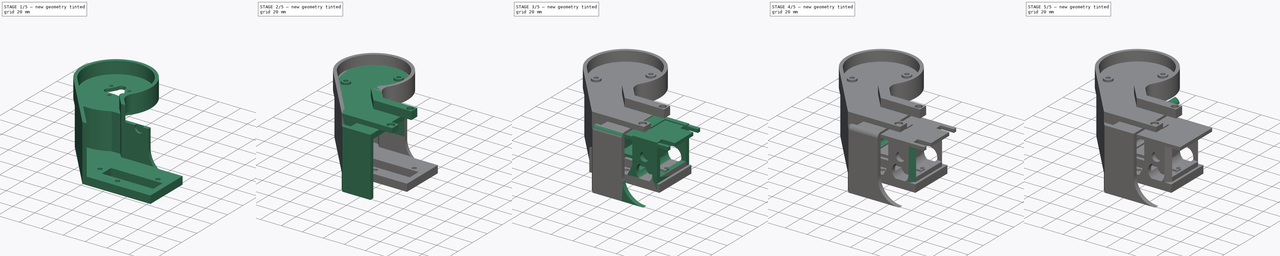
[diagram: build sequence overview — one tinted view per stage of 5, left to right]
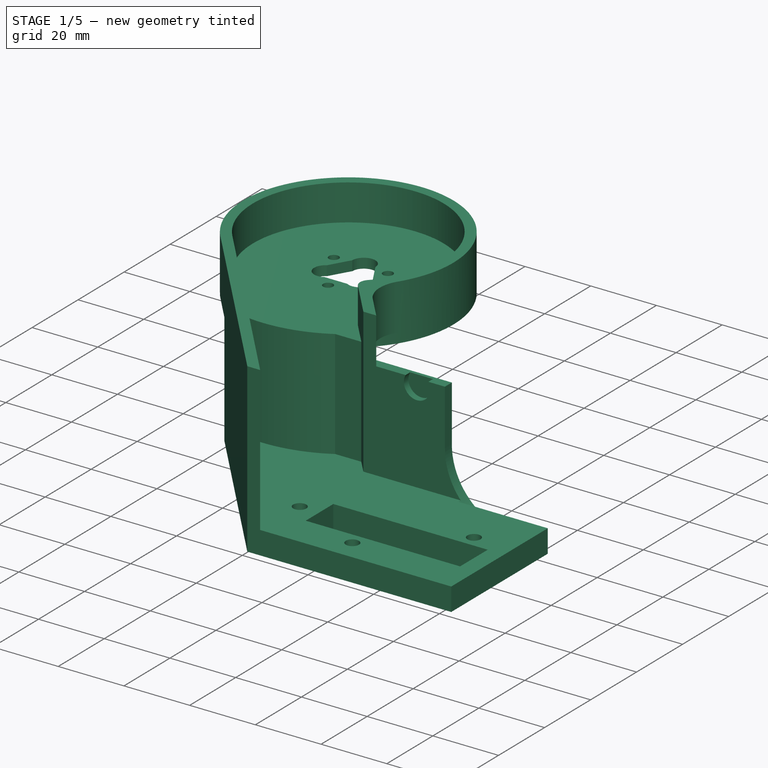
[diagram: stage 1 of 5 — iso view after this stage's code; geometry added in this stage tinted green]
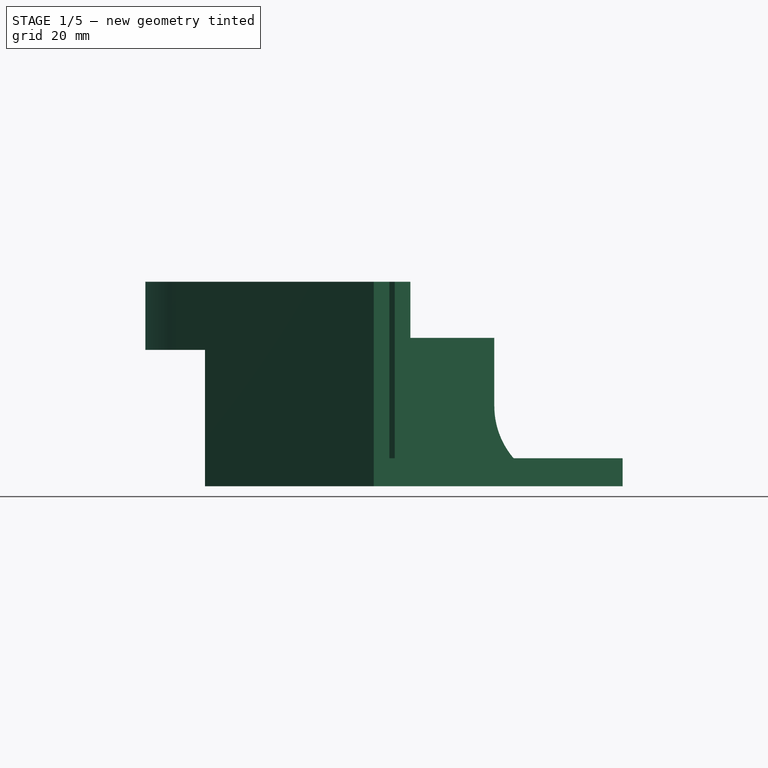
[diagram: stage 1 of 5 — front view after this stage's code; geometry added in this stage tinted green]
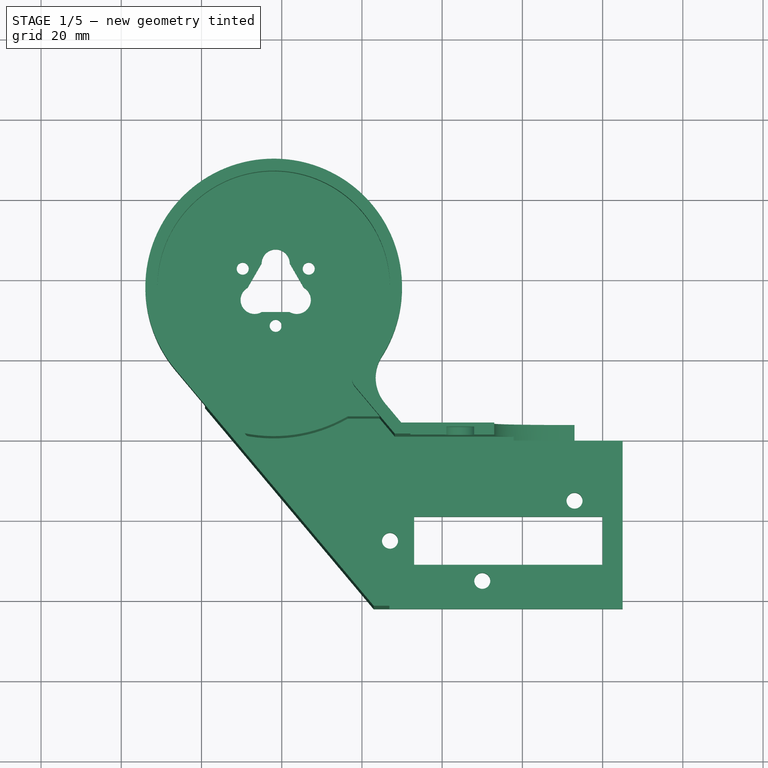
[diagram: stage 1 of 5 — top view after this stage's code; geometry added in this stage tinted green]
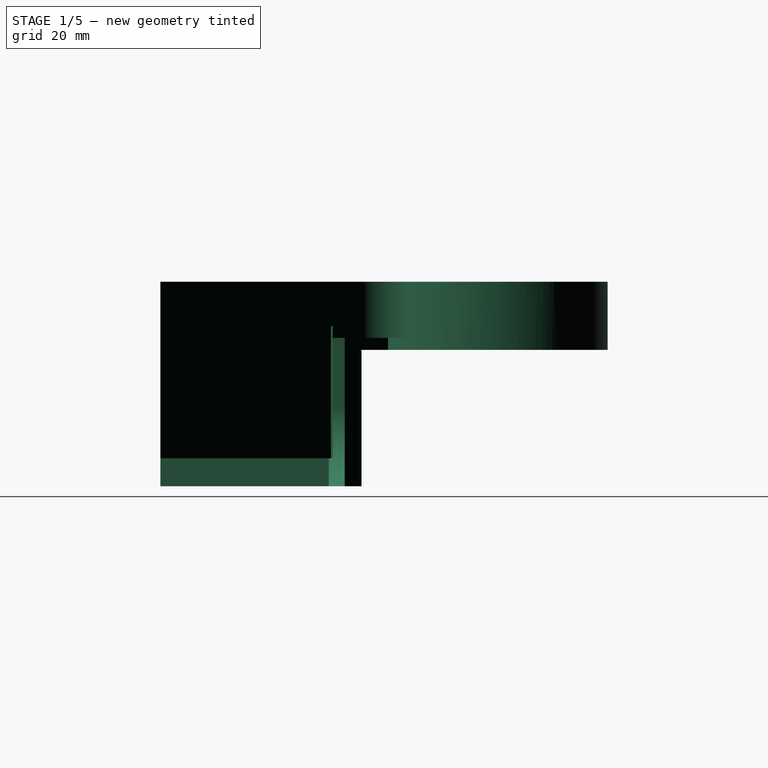
[diagram: stage 1 of 5 — right view after this stage's code; geometry added in this stage tinted green]
FCSTD DOCUMENT  (FreeCAD 1.0R39319 (Git))
Label: ThirdArm
License: All rights reserved
LicenseURL: https://en.wikipedia.org/wiki/All_rights_reserved
objects: Sketcher::SketchObject×49, PartDesign::Pocket×29, PartDesign::Pad×18, PartDesign::Body×7, App::Link×6, Part::Feature×6, App::Part×6, PartDesign::FeaturePython×3, PartDesign::Fillet×3, PartDesign::Chamfer×3, PartDesign::Hole×3, Spreadsheet::Sheet×1, Part::FeaturePython×1, PartDesign::Thickness×1, App::LinkGroup×1
note: 289 computed .brp shape members not serialized (recipe doc carries the construction recipe); baked Part::Feature solids carry a one-line shape summary decoded from their .brp
EXTERNAL_REF file=QuaterGear.FCStd obj=Body
EXTERNAL_REF file=Robot.FCStd obj=Spreadsheet
EXTERNAL_REF file=GT2_80.FCStd obj=Part__Feature
EXTERNAL_REF file=GM12-15BY.FCStd obj=LinkGroup
EXTERNAL_REF file=GT2_80.FCStd obj=Body002

FEATURE [PartDesign::Body] Body002  label="LowerShaft"
  AllowCompound = false
  Group = -> [Sketch004,Pad001,Sketch005,Pad002,Sketch006,Pad003,Sketch015,Sketch016,Pocket005,Pocket006]
  Origin = -> Origin003
  Placement = pos=(31,-24,-24) rot=(0,1,0;3.92699rad)
  Tip = -> Pocket006
FEATURE [Sketcher::SketchObject] Sketch017
  ArcFitTolerance = 1e-06
  AttachmentSupport = -> [XY_Plane]
  FullyConstrained = false
  MakeInternals = false
  MapMode = 5
  sketch-geometry (4):
    g0: ArcOfCircle CenterX=-42 CenterY=37.5 CenterZ=0 NormalX=0 NormalY=0 NormalZ=1 AngleXU=0 Radius=32 StartAngle=5.49263 EndAngle=10.1229
    g1: LineSegment StartX=-66.5129 StartY=16.9302 StartZ=0 EndX=-6.82135 EndY=-54.2074 EndZ=0
    g2: LineSegment StartX=-19.4896 StartY=14.7562 StartZ=0 EndX=-6.82135 EndY=-0.341297 EndZ=0
    g3: LineSegment StartX=-6.82135 StartY=-0.341297 StartZ=0 EndX=-6.82135 EndY=-54.2074 EndZ=0
  constraints (10):
    c: Angle(g1,g-1) = 0.872665
    c: Angle(g-1,g2) = -0.872665
    c: Coincident(g3,g1)
    c: Vertical(g3)
    c: Coincident(g0,g1)
    c: Coincident(g0,g2)
    c: DistanceX(g0,g-1) = 42
    c: DistanceY(g-1,g0) = 37.5
    c: Radius(g0) = 32
    c: Coincident(g2,g3)
FEATURE [PartDesign::Pad] Pad010
  Direction = (0,0,1)
  Length = 14
  Length2 = 10
  Profile = -> Sketch017
  ReferenceAxis = -> Sketch017 [N_Axis]
  Refine = true
  Suppressed = false
  Type = 0
FEATURE [App::Link] Link012  label="MainShaft"
  LinkPlacement = pos=(-43.5,37.5,-36) rot=(0,0,1;0rad)
  LinkedObject = -> <external GT2_80.FCStd>#Body002
  Placement = pos=(-43.5,37.5,-36) rot=(0,0,1;0rad)
FEATURE [PartDesign::Thickness] Thickness
  Base = -> Pad010 [Face6]
  BaseFeature = -> Pad010
  Intersection = true
  Join = 0
  Mode = 0
  Refine = true
  Reversed = true
  SupportTransform = false
  Suppressed = false
  Value = 3
FEATURE [PartDesign::Pad] Pad011
  BaseFeature = -> Thickness
  Direction = (0,0,-1)
  Length = 37
  Length2 = 10
  Profile = -> Sketch018
  ReferenceAxis = -> Sketch018 [N_Axis]
  Refine = true
  Suppressed = false
  Type = 0
FEATURE [Sketcher::SketchObject] Sketch019
  ArcFitTolerance = 1e-06
  AttachmentSupport = -> [Pad011]
  ExternalGeometry = -> [Pad011]
  FullyConstrained = false
  MakeInternals = false
  MapMode = 5
  Placement = pos=(0,0,14) rot=(0,0,1;0rad)
  sketch-geometry (10):
    g0: LineSegment StartX=-17.5 StartY=-62.76 StartZ=0 EndX=50.544 EndY=-62.76 EndZ=0
    g1: LineSegment StartX=50.544 StartY=-62.76 StartZ=0 EndX=50.544 EndY=0.961001 EndZ=0
    g2: LineSegment StartX=50.544 StartY=0.961001 StartZ=0 EndX=-17.0127 EndY=0.961001 EndZ=0
    g3: LineSegment StartX=-32.1829 StartY=-42 StartZ=0 EndX=-32.1829 EndY=-55.0243 EndZ=0
    g4: LineSegment StartX=-32.1829 StartY=-55.0243 StartZ=0 EndX=-17.5 EndY=-55.0243 EndZ=0
    g5: LineSegment StartX=-13.1484 StartY=-42 StartZ=0 EndX=-32.1829 EndY=-42 EndZ=0
    g6: LineSegment StartX=-17.5 StartY=-55.0243 StartZ=0 EndX=-17.5 EndY=-62.76 EndZ=0
    g7: LineSegment StartX=-19 StartY=-35.0263 StartZ=0 EndX=-13.1484 EndY=-42 EndZ=0
    g8: LineSegment StartX=-19 StartY=-35.0263 StartZ=0 EndX=-19 EndY=-1.02632 EndZ=0
    g9: LineSegment StartX=-19 StartY=-1.02632 StartZ=0 EndX=-17.0127 EndY=0.961001 EndZ=0
  constraints (24):
    c: Coincident(g0,g1)
    c: Coincident(g1,g2)
    c: Coincident(g6,g0)
    c: Horizontal(g0)
    c: Horizontal(g2)
    c: Vertical(g1)
    c: Distance(g-1,g0) = 62.76
    c: Coincident(g3,g4)
    c: Coincident(g5,g3)
    c: Vertical(g3)
    c: Horizontal(g4)
    c: Horizontal(g5)
    c: Coincident(g4,g6)
    c: Coincident(g7,g5)
    c: Distance(g-1,g5) = 42
    c: Coincident(g8,g7)
    c: Vertical(g8)
    c: Coincident(g9,g8)
    c: Coincident(g9,g2)
    c: Distance(g-2,g8) = 19
    c: Angle(g-1,g9) = 0.785398
    c: Angle(g7,g5) = 0.872665
    c: DistanceY(g8,g8) = 34
    c: Distance(g-4,g2) = 3
FEATURE [PartDesign::Pocket] Pocket007
  BaseFeature = -> Pad011
  Direction = (0,0,-1)
  Length = 44
  Length2 = 5
  Profile = -> Sketch019
  ReferenceAxis = -> Sketch019 [N_Axis]
  Refine = true
  Suppressed = false
  Type = 0
FEATURE [Sketcher::SketchObject] Sketch020
  ArcFitTolerance = 1e-06
  AttachmentSupport = -> [Pocket007]
  FullyConstrained = false
  MakeInternals = false
  MapMode = 5
  Placement = pos=(0,0,14) rot=(0,0,1;0rad)
  sketch-geometry (4):
    g0: LineSegment StartX=54.2024 StartY=-63.0343 StartZ=0 EndX=54.2024 EndY=-42 EndZ=0
    g1: LineSegment StartX=54.2024 StartY=-42 StartZ=0 EndX=-35.8003 EndY=-42 EndZ=0
    g2: LineSegment StartX=-35.8003 StartY=-42 StartZ=0 EndX=-35.8003 EndY=-63.0343 EndZ=0
    g3: LineSegment StartX=-35.8003 StartY=-63.0343 StartZ=0 EndX=54.2024 EndY=-63.0343 EndZ=0
  constraints (9):
    c: Coincident(g0,g1)
    c: Coincident(g1,g2)
    c: Coincident(g2,g3)
    c: Coincident(g3,g0)
    c: Vertical(g0)
    c: Vertical(g2)
    c: Horizontal(g1)
    c: Horizontal(g3)
    c: Distance(g-1,g1) = 42
FEATURE [PartDesign::Pocket] Pocket008
  BaseFeature = -> Pocket007
  Direction = (0,0,-1)
  Length = 5
  Length2 = 5
  Profile = -> Sketch020
  ReferenceAxis = -> Sketch020 [N_Axis]
  Refine = true
  Suppressed = false
  Type = 1
FEATURE [Sketcher::SketchObject] Sketch021
  ArcFitTolerance = 1e-06
  AttachmentSupport = -> [Pocket008]
  FullyConstrained = false
  MakeInternals = false
  MapMode = 5
  Placement = pos=(0,3.961,0) rot=(0,0.707107,0.707107;3.14159rad)
  sketch-geometry (5):
    g0: ArcOfCircle CenterX=-33 CenterY=-17 CenterZ=0 NormalX=0 NormalY=0 NormalZ=1 AngleXU=0 Radius=20 StartAngle=4.71239 EndAngle=6.28319
    g1: LineSegment StartX=-13 StartY=-17 StartZ=0 EndX=-13 EndY=6.96255 EndZ=0
    g2: LineSegment StartX=-13 StartY=6.96255 StartZ=0 EndX=-66.8614 EndY=6.96255 EndZ=0
    g3: LineSegment StartX=-66.8614 StartY=6.96255 StartZ=0 EndX=-66.8614 EndY=-37 EndZ=0
    g4: LineSegment StartX=-66.8614 StartY=-37 StartZ=0 EndX=-33.0001 EndY=-37 EndZ=0
  constraints (14):
    c: Radius(g0) = 20
    c: Distance(g0,g-1) = 17
    c: Vertical(g1)
    c: Coincident(g1,g0)
    c: Horizontal(g2)
    c: Coincident(g2,g1)
    c: Coincident(g0,g4)
    c: Coincident(g3,g4)
    c: Coincident(g2,g3)
    c: Horizontal(g0,g0)
    c: Horizontal(g4)
    c: Distance(g0,g-2) = 33
    c: Vertical(g3)
    c: Distance(g0,g4) = 20
FEATURE [PartDesign::Pocket] Pocket009
  BaseFeature = -> Pocket008
  Direction = (0,-1,2e-16)
  Length = 4
  Length2 = 5
  Profile = -> Sketch021
  ReferenceAxis = -> Sketch021 [N_Axis]
  Refine = true
  Suppressed = false
  Type = 0
FEATURE [Sketcher::SketchObject] Sketch031
  ArcFitTolerance = 1e-06
  AttachmentSupport = -> [Thickness]
  FullyConstrained = false
  MakeInternals = false
  MapMode = 5
  Placement = pos=(0,0,3) rot=(0,0,1;0rad)
  sketch-geometry (11):
    g0: GeomPoint [constr] X=-41.5 Y=37.5 Z=0
    g1: LineSegment StartX=-34.5 StartY=37.5 StartZ=0 EndX=-38 EndY=43.5622 EndZ=0
    g2: Circle [constr] CenterX=-41.5 CenterY=37.5 CenterZ=0 NormalX=0 NormalY=0 NormalZ=1 AngleXU=0 Radius=7
    g3: ArcOfCircle CenterX=-41.5 CenterY=43.5368 CenterZ=0 NormalX=0 NormalY=0 NormalZ=1 AngleXU=0 Radius=3.50009 StartAngle=0.00725319 EndAngle=3.13434
    g4: ArcOfCircle CenterX=-36.2363 CenterY=34.461 CenterZ=0 NormalX=0 NormalY=0 NormalZ=1 AngleXU=0 Radius=3.50004 StartAngle=4.18428 EndAngle=7.3349
    g5: ArcOfCircle CenterX=-46.7609 CenterY=34.4626 CenterZ=0 NormalX=0 NormalY=0 NormalZ=1 AngleXU=0 Radius=3.50002 StartAngle=2.0908 EndAngle=5.23958
    g6: LineSegment StartX=-45 StartY=43.5622 StartZ=0 EndX=-48.5 EndY=37.5 EndZ=0
    g7: LineSegment StartX=-45 StartY=31.4378 StartZ=0 EndX=-38 EndY=31.4378 EndZ=0
    g8: Circle CenterX=-41.5 CenterY=28 CenterZ=0 NormalX=0 NormalY=0 NormalZ=1 AngleXU=0 Radius=1.5
    g9: Circle CenterX=-33.2728 CenterY=42.25 CenterZ=0 NormalX=0 NormalY=0 NormalZ=1 AngleXU=0 Radius=1.5
    g10: Circle CenterX=-49.7272 CenterY=42.25 CenterZ=0 NormalX=0 NormalY=0 NormalZ=1 AngleXU=0 Radius=1.5
  constraints (24):
    c: DistanceX(g0,g-1) = 41.5
    c: DistanceY(g-1,g0) = 37.5
    c: PointOnObject(g1,g2)
    c: PointOnObject(g5,g2)
    c: PointOnObject(g4,g2)
    c: PointOnObject(g1,g2)
    c: Radius(g2) = 7
    c: Coincident(g2,g0)
    c: Coincident(g3,g1)
    c: Coincident(g4,g1)
    c: Coincident(g6,g3)
    c: Coincident(g6,g5)
    c: Coincident(g7,g5)
    c: Coincident(g7,g4)
    c: Horizontal(g7)
    c: Diameter(g8) = 3
    c: DistanceY(g8,g0) = 9.5
    c: Vertical(g0,g8)
    c: Diameter(g9) = 3
    c: Distance(g9,g0) = 9.5
    c: DistanceY(g0,g9) = 4.75
    c: Diameter(g10) = 3
    c: Distance(g10,g0) = 9.5
    c: DistanceY(g0,g10) = 4.75
FEATURE [PartDesign::Pocket] Pocket028
  BaseFeature = -> Pocket009
  Direction = (0,0,-1)
  Length = 5
  Length2 = 5
  Profile = -> Sketch031
  ReferenceAxis = -> Sketch031 [N_Axis]
  Refine = true
  Suppressed = false
  Type = 0
FEATURE [PartDesign::Fillet] Fillet006
  Base = -> Pocket028 [Edge1]
  BaseFeature = -> Pocket028
  Radius = 10
  Refine = true
  SupportTransform = false
  Suppressed = false
  UseAllEdges = false
FEATURE [Sketcher::SketchObject] Sketch052
  ArcFitTolerance = 1e-06
  FullyConstrained = false
  MakeInternals = false
  MapMode = 5
  Placement = pos=(0,0,0) rot=(1,0,0;3.14159rad)
  sketch-geometry (6):
    g0: ArcOfCircle CenterX=-42 CenterY=-37.5 CenterZ=0 NormalX=0 NormalY=0 NormalZ=1 AngleXU=0 Radius=32 StartAngle=2.44344 EndAngle=7.07374
    g1: ArcOfCircle CenterX=-42 CenterY=-37.5 CenterZ=0 NormalX=0 NormalY=0 NormalZ=1 AngleXU=0 Radius=34 StartAngle=1.05435 EndAngle=2.09876
    g2: LineSegment StartX=-59.1284 StartY=-8.12962 StartZ=0 EndX=-66.5129 EndY=-16.9302 EndZ=0
    g3: LineSegment StartX=-13.7654 StartY=-7.93429 StartZ=0 EndX=-25.2111 EndY=-7.93429 EndZ=0
    g4: LineSegment StartX=-13.7654 StartY=-7.93429 StartZ=0 EndX=-19.4896 EndY=-14.7562 EndZ=0
    g5: Circle CenterX=-41 CenterY=-37.5 CenterZ=0 NormalX=0 NormalY=0 NormalZ=1 AngleXU=0 Radius=24
  constraints (13):
    c: Coincident(g0,g-6)
    c: Coincident(g0,g-7)
    c: Coincident(g1,g0)
    c: Coincident(g1,g-6)
    c: Coincident(g2,g1)
    c: Coincident(g2,g0)
    c: Coincident(g3,g-5)
    c: Coincident(g3,g1)
    c: Coincident(g4,g3)
    c: Coincident(g4,g0)
    c: Diameter(g5) = 48
    c: Distance(g5,g-1) = 37.5
    c: Distance(g5,g-2) = 41
FEATURE [PartDesign::Pad] Pad021
  BaseFeature = -> Fillet006
  Direction = (0,-1e-16,-1)
  Length = 3
  Length2 = 10
  Profile = -> Sketch052
  ReferenceAxis = -> Sketch052 [N_Axis]
  Refine = true
  Suppressed = false
  Type = 0
FEATURE [Sketcher::SketchObject] Sketch053
  ArcFitTolerance = 1e-06
  AttachmentSupport = -> [Pocket028]
  ExternalGeometry = -> [Pocket028]
  FullyConstrained = false
  MakeInternals = false
  MapMode = 5
  Placement = pos=(0,0,3) rot=(0,0,1;0rad)
  sketch-geometry (7):
    g0: ArcOfCircle CenterX=-42 CenterY=37.5 CenterZ=0 NormalX=0 NormalY=0 NormalZ=1 AngleXU=0 Radius=37 StartAngle=4.50979 EndAngle=5.23479
    g1: LineSegment StartX=-23.5384 StartY=5.43491 StartZ=0 EndX=-15.5844 EndY=5.43491 EndZ=0
    g2: LineSegment StartX=-11.8303 StartY=0.961001 StartZ=0 EndX=-15.5844 EndY=5.43491 EndZ=0
    g3: LineSegment StartX=-11.8303 StartY=0.961001 StartZ=0 EndX=-17.0127 EndY=0.961001 EndZ=0
    g4: LineSegment StartX=-17.0127 StartY=0.961001 StartZ=0 EndX=-19 EndY=-1.0704 EndZ=0
    g5: LineSegment StartX=-19 StartY=-1.0704 StartZ=0 EndX=-19 EndY=-35.0263 EndZ=0
    g6: LineSegment StartX=-19 StartY=-35.0263 StartZ=0 EndX=-49.4452 EndY=1.2568 EndZ=0
  constraints (14):
    c: Radius(g0) = 37
    c: Horizontal(g1)
    c: Coincident(g1,g0)
    c: PointOnObject(g1,g-6)
    c: Coincident(g2,g-8)
    c: Coincident(g2,g1)
    c: Coincident(g3,g2)
    c: Coincident(g3,g-8)
    c: Coincident(g3,g4)
    c: Coincident(g4,g-9)
    c: Coincident(g4,g5)
    c: Coincident(g5,g-9)
    c: Coincident(g5,g6)
    c: Coincident(g6,g0)
FEATURE [PartDesign::Pocket] Pocket029
  BaseFeature = -> Pad021
  Direction = (0,0,-1)
  Length = 33
  Length2 = 5
  Profile = -> Sketch053
  ReferenceAxis = -> Sketch053 [N_Axis]
  Refine = true
  Suppressed = false
  Type = 0
FEATURE [Sketcher::SketchObject] Sketch054
  ArcFitTolerance = 1e-06
  AttachmentSupport = -> [Pocket029]
  FullyConstrained = true
  MakeInternals = false
  MapMode = 5
  Placement = pos=(0,0,-30) rot=(0,0,1;0rad)
  sketch-geometry (7):
    g0: Circle CenterX=-13 CenterY=-25 CenterZ=0 NormalX=0 NormalY=0 NormalZ=1 AngleXU=0 Radius=2
    g1: Circle CenterX=33 CenterY=-15 CenterZ=0 NormalX=0 NormalY=0 NormalZ=1 AngleXU=0 Radius=2
    g2: LineSegment StartX=-7 StartY=-19 StartZ=0 EndX=-7 EndY=-31 EndZ=0
    g3: LineSegment StartX=-7 StartY=-31 StartZ=0 EndX=40 EndY=-31 EndZ=0
    g4: LineSegment StartX=40 StartY=-31 StartZ=0 EndX=40 EndY=-19 EndZ=0
    g5: LineSegment StartX=40 StartY=-19 StartZ=0 EndX=-7 EndY=-19 EndZ=0
    g6: Circle CenterX=10 CenterY=-35 CenterZ=0 NormalX=0 NormalY=0 NormalZ=1 AngleXU=0 Radius=2
  constraints (21):
    c: Diameter(g0) = 4
    c: Diameter(g1) = 4
    c: DistanceY(g1,g-1) = 15
    c: Distance(g1,g-2) = 33
    c: DistanceX(g0,g-1) = 13
    c: DistanceY(g0,g-1) = 25
    c: Coincident(g2,g3)
    c: Coincident(g3,g4)
    c: Coincident(g4,g5)
    c: Coincident(g5,g2)
    c: Vertical(g2)
    c: Vertical(g4)
    c: Horizontal(g3)
    c: Horizontal(g5)
    c: DistanceY(g4,g4) = 12
    c: DistanceX(g3,g3) = 47
    c: DistanceY(g4,g-1) = 19
    c: DistanceX(g-1,g4) = 40
    c: Diameter(g6) = 4
    c: DistanceX(g-1,g6) = 10
    c: DistanceY(g6,g-1) = 35
FEATURE [PartDesign::Pocket] Pocket030
  BaseFeature = -> Pocket029
  Direction = (0,0,-1)
  Length = 5
  Length2 = 5
  Profile = -> Sketch054
  ReferenceAxis = -> Sketch054 [N_Axis]
  Refine = true
  Suppressed = false
  Type = 1
FEATURE [Sketcher::SketchObject] Sketch057
  ArcFitTolerance = 1e-06
  AttachmentSupport = -> [Pocket030]
  FullyConstrained = true
  MakeInternals = false
  MapMode = 5
  Placement = pos=(0,0.961001,0) rot=(1,0,0;1.5708rad)
  sketch-geometry (1):
    g0: Circle CenterX=4.5 CenterY=-2 CenterZ=0 NormalX=0 NormalY=0 NormalZ=1 AngleXU=0 Radius=4
  constraints (3):
    c: Diameter(g0) = 8
    c: DistanceX(g-1,g0) = 4.5
    c: DistanceY(g0,g-1) = 2
FEATURE [PartDesign::Pocket] Pocket033
  BaseFeature = -> Pocket030
  Direction = (0,1,-2e-16)
  Length = 2
  Length2 = 5
  Profile = -> Sketch057
  ReferenceAxis = -> Sketch057 [N_Axis]
  Refine = true
  Suppressed = false
  Type = 0
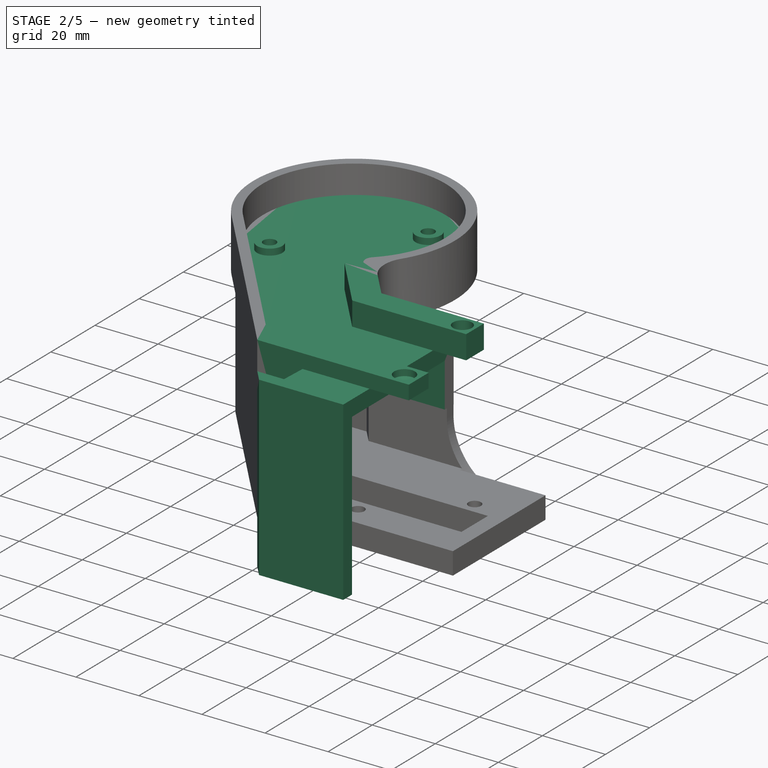
[diagram: stage 2 of 5 — iso view after this stage's code; geometry added in this stage tinted green]
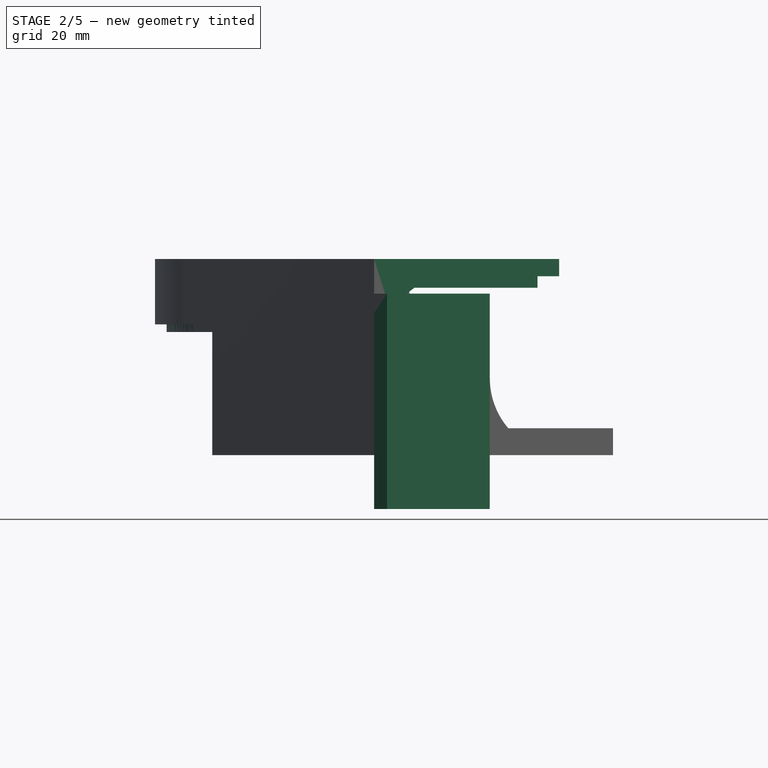
[diagram: stage 2 of 5 — front view after this stage's code; geometry added in this stage tinted green]
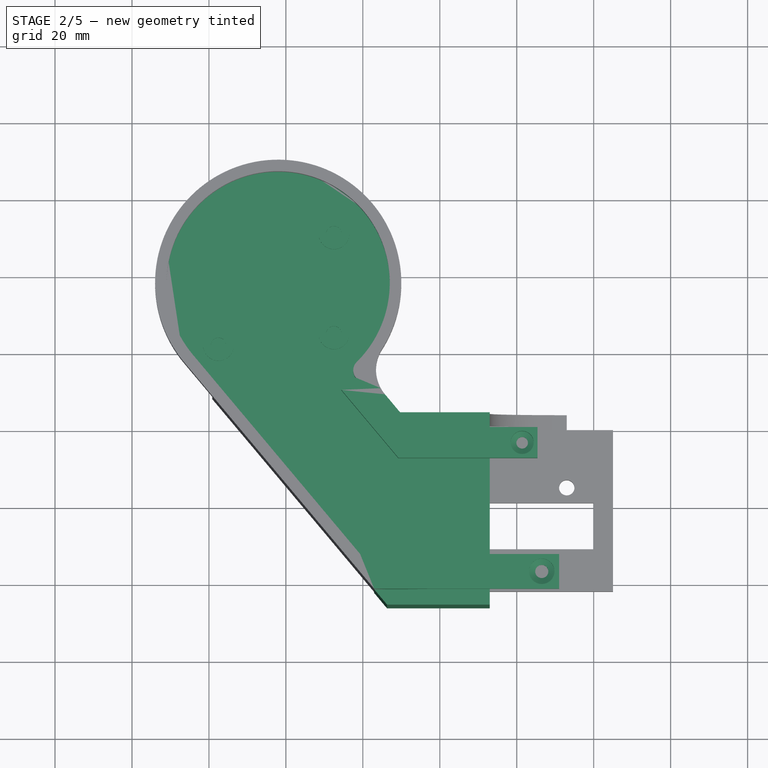
[diagram: stage 2 of 5 — top view after this stage's code; geometry added in this stage tinted green]
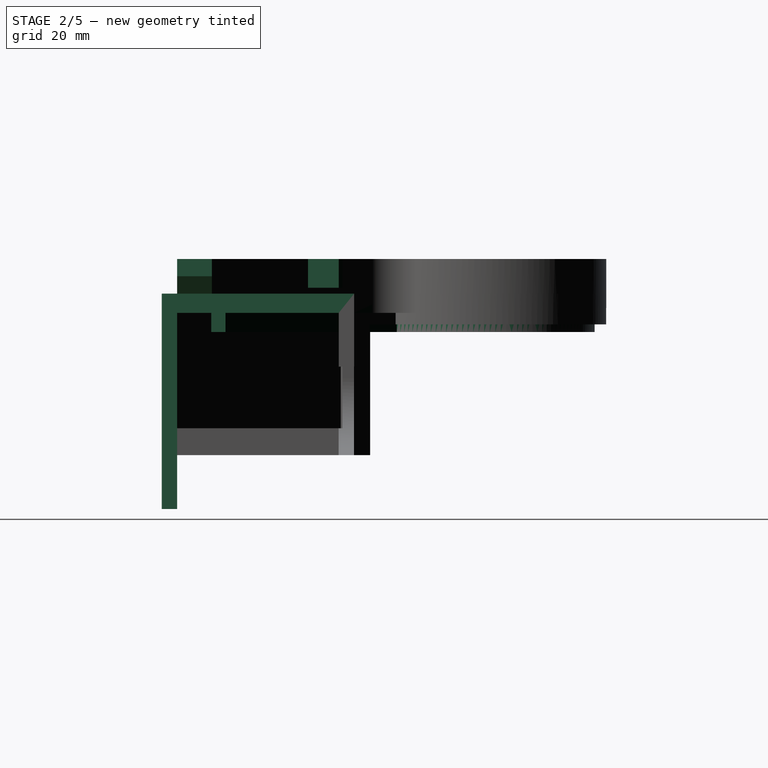
[diagram: stage 2 of 5 — right view after this stage's code; geometry added in this stage tinted green]
FEATURE [Sketcher::SketchObject] Sketch018
  ArcFitTolerance = 1e-06
  AttachmentSupport = -> [Pad010]
  ExternalGeometry = -> [Sketch017,Pad010]
  FullyConstrained = false
  MakeInternals = false
  MapMode = 5
  Placement = pos=(0,0,0) rot=(1,0,0;3.14159rad)
  sketch-geometry (8):
    g0: ArcOfCircle CenterX=-42 CenterY=-37.5 CenterZ=0 NormalX=0 NormalY=0 NormalZ=1 AngleXU=0 Radius=34 StartAngle=1.05435 EndAngle=2.09876
    g1: LineSegment StartX=-25.2111 StartY=-7.93429 StartZ=0 EndX=-13.7654 EndY=-7.93429 EndZ=0
    g2: LineSegment StartX=-13.7654 StartY=-7.93429 StartZ=0 EndX=-10.4314 EndY=-3.961 EndZ=0
    g3: LineSegment StartX=-59.1284 StartY=-8.12962 StartZ=0 EndX=-6.82135 EndY=54.2074 EndZ=0
    g4: GeomPoint X=-6.82135 Y=54.2074 Z=0
    g5: LineSegment StartX=-6.82135 StartY=54.2074 StartZ=0 EndX=45 EndY=54.2074 EndZ=0
    g6: LineSegment StartX=45 StartY=54.2074 StartZ=0 EndX=45 EndY=-3.961 EndZ=0
    g7: LineSegment StartX=45 StartY=-3.961 StartZ=0 EndX=-10.4314 EndY=-3.961 EndZ=0
  constraints (21):
    c: DistanceY(g0,g-1) = 37.5
    c: Coincident(g1,g0)
    c: Radius(g0) = 34
    c: Angle(g-1,g2) = 0.872665
    c: Coincident(g1,g2)
    c: Coincident(g0,g3)
    c: Angle(g-4) = 0.872665
    c: Angle(g-1,g3) = 0.872665
    c: Horizontal(g5)
    c: Coincident(g5,g3)
    c: Vertical(g6)
    c: Coincident(g6,g5)
    c: Horizontal(g7)
    c: Coincident(g3,g4)
    c: Coincident(g3,g-4)
    c: Coincident(g6,g7)
    c: Coincident(g2,g7)
    c: Horizontal(g1,g0)
    c: DistanceX(g0,g-1) = 42
    c: Block(g1)
    c: Distance(g-2,g6) = 45
FEATURE [Sketcher::SketchObject] Sketch025
  ArcFitTolerance = 1e-06
  AttachmentSupport = -> [XY_Plane005]
  FullyConstrained = false
  MakeInternals = false
  MapMode = 5
  sketch-geometry (6):
    g0: ArcOfCircle CenterX=-42 CenterY=37.5 CenterZ=0 NormalX=0 NormalY=0 NormalZ=1 AngleXU=0 Radius=32 StartAngle=5.49278 EndAngle=10.1229
    g1: LineSegment StartX=-66.5134 StartY=16.9308 StartZ=0 EndX=-13.7082 EndY=-46 EndZ=0
    g2: LineSegment StartX=-19.4862 StartY=14.7596 StartZ=0 EndX=-10.4578 EndY=4 EndZ=0
    g3: LineSegment StartX=-13.7082 StartY=-46 StartZ=0 EndX=13 EndY=-46 EndZ=0
    g4: LineSegment StartX=-10.4578 StartY=4 StartZ=0 EndX=13 EndY=4 EndZ=0
    g5: LineSegment StartX=13 StartY=-46 StartZ=0 EndX=13 EndY=4 EndZ=0
  constraints (18):
    c: Angle(g1,g-1) = 0.872665
    c: Angle(g-1,g2) = -0.872665
    c: Coincident(g0,g1)
    c: Coincident(g0,g2)
    c: DistanceX(g0,g-1) = 42
    c: DistanceY(g-1,g0) = 37.5
    c: Radius(g0) = 32
    c: Distance(g-1,g2) = 5.44
    c: Horizontal(g3)
    c: Coincident(g3,g1)
    c: Horizontal(g4)
    c: Coincident(g4,g2)
    c: Vertical(g5)
    c: Coincident(g3,g5)
    c: Coincident(g4,g5)
    c: Distance(g-1,g3) = 46
    c: Distance(g-1,g4) = 4
    c: Distance(g-2,g5) = 13
FEATURE [PartDesign::Pad] Pad012  label="Pad00"
  Direction = (0,0,1)
  Length = 5
  Length2 = 10
  Profile = -> Sketch025
  ReferenceAxis = -> Sketch025 [N_Axis]
  Refine = true
  Suppressed = false
  Type = 0
FEATURE [Sketcher::SketchObject] Sketch026
  ArcFitTolerance = 1e-06
  AttachmentOffset = pos=(0,0,0) rot=(1,0,0;3.14159rad)
  AttachmentSupport = -> [Pad012]
  FullyConstrained = false
  MakeInternals = false
  MapMode = 5
  sketch-geometry (6):
    g0: ArcOfCircle CenterX=-42 CenterY=37.5 CenterZ=0 NormalX=0 NormalY=0 NormalZ=1 AngleXU=0 Radius=26.6323 StartAngle=5.39176 EndAngle=10.1229
    g1: LineSegment StartX=-62.4015 StartY=20.3811 StartZ=0 EndX=-20.5819 EndY=-29.4576 EndZ=0
    g2: ArcOfCircle CenterX=-42 CenterY=37.5 CenterZ=0 NormalX=0 NormalY=0 NormalZ=1 AngleXU=0 Radius=29 StartAngle=5.39774 EndAngle=10.1229
    g3: LineSegment StartX=-20.5819 StartY=-33.1411 StartZ=0 EndX=-64.2153 EndY=18.8592 EndZ=0
    g4: LineSegment StartX=-20.5819 StartY=-29.4576 StartZ=0 EndX=-20.5819 EndY=-33.1411 EndZ=0
    g5: LineSegment StartX=-23.6446 StartY=15.0483 StartZ=0 EndX=-25.2669 EndY=16.7809 EndZ=0
  constraints (13):
    c: Angle(g1,g-1) = 0.872665
    c: Coincident(g0,g1)
    c: DistanceX(g0,g-1) = 42
    c: DistanceY(g-1,g0) = 37.5
    c: Coincident(g2,g0)
    c: Diameter(g2) = 58
    c: Angle(g3,g-1) = 0.872665
    c: Coincident(g2,g3)
    c: Vertical(g1,g3)
    c: Coincident(g4,g1)
    c: Coincident(g4,g3)
    c: Coincident(g5,g2)
    c: Coincident(g0,g5)
FEATURE [PartDesign::Pad] Pad013
  BaseFeature = -> Pad012
  Direction = (0,1e-16,1)
  Length = 5
  Length2 = 10
  Profile = -> Sketch026
  ReferenceAxis = -> Sketch026 [N_Axis]
  Refine = true
  Reversed = true
  Suppressed = false
  Type = 0
FEATURE [Sketcher::SketchObject] Sketch027
  ArcFitTolerance = 1e-06
  AttachmentSupport = -> [Pad013]
  ExternalGeometry = -> [Pad013]
  FullyConstrained = false
  MakeInternals = false
  MapMode = 5
  Placement = pos=(0,0,0) rot=(1,0,0;3.14159rad)
  sketch-geometry (4):
    g0: LineSegment StartX=-10.4578 StartY=-4 StartZ=0 EndX=-7.10141 EndY=-4e-16 EndZ=0
    g1: LineSegment StartX=-7.10141 StartY=-4e-16 StartZ=0 EndX=13 EndY=-4e-16 EndZ=0
    g2: LineSegment StartX=13 StartY=-4e-16 StartZ=0 EndX=13 EndY=-4 EndZ=0
    g3: LineSegment StartX=13 StartY=-4 StartZ=0 EndX=-10.4578 EndY=-4 EndZ=0
  constraints (9):
    c: Coincident(g0,g1)
    c: Horizontal(g1)
    c: Coincident(g1,g2)
    c: Vertical(g2)
    c: Coincident(g2,g3)
    c: Coincident(g3,g0)
    c: Angle(g3,g0) = 0.872665
    c: Horizontal(g1,g-1)
    c: Coincident(g2,g-3)
FEATURE [PartDesign::Pad] Pad014
  BaseFeature = -> Pad013
  Direction = (0,0,-1)
  Length = 14
  Length2 = 10
  Profile = -> Sketch027
  ReferenceAxis = -> Sketch027 [N_Axis]
  Refine = true
  Suppressed = false
  Type = 0
FEATURE [Sketcher::SketchObject] Sketch028
  ArcFitTolerance = 1e-06
  AttachmentSupport = -> [Pad014]
  ExternalGeometry = -> [Pad014]
  FullyConstrained = true
  MakeInternals = false
  MapMode = 5
  Placement = pos=(0,0,0) rot=(1,0,0;3.14159rad)
  sketch-geometry (4):
    g0: LineSegment StartX=-13.7082 StartY=46 StartZ=0 EndX=-17.0646 EndY=42 EndZ=0
    g1: LineSegment StartX=-17.0646 StartY=42 StartZ=0 EndX=13 EndY=42 EndZ=0
    g2: LineSegment StartX=-13.7082 StartY=46 StartZ=0 EndX=13 EndY=46 EndZ=0
    g3: LineSegment StartX=13 StartY=42 StartZ=0 EndX=13 EndY=46 EndZ=0
  constraints (10):
    c: PointOnObject(g0,g-3)
    c: Coincident(g0,g1)
    c: Coincident(g0,g-3)
    c: Coincident(g2,g0)
    c: Coincident(g3,g1)
    c: Coincident(g3,g2)
    c: Vertical(g3)
    c: Distance(g-1,g1) = 42
    c: Horizontal(g1)
    c: Coincident(g3,g-4)
FEATURE [PartDesign::Pad] Pad015
  BaseFeature = -> Pad014
  Direction = (0,0,-1)
  Length = 51
  Length2 = 10
  Profile = -> Sketch028
  ReferenceAxis = -> Sketch028 [N_Axis]
  Refine = true
  Suppressed = false
  Type = 0
FEATURE [Sketcher::SketchObject] Sketch058
  ArcFitTolerance = 1e-06
  AttachmentSupport = -> [Pocket033]
  ExternalGeometry = -> [Pocket033]
  FullyConstrained = true
  MakeInternals = false
  MapMode = 5
  Placement = pos=(0,0,14) rot=(0,0,1;0rad)
  sketch-geometry (4):
    g0: LineSegment StartX=-13.1484 StartY=-42 StartZ=0 EndX=-20.7003 EndY=-33 EndZ=0
    g1: LineSegment StartX=-20.7003 StartY=-33 StartZ=0 EndX=31 EndY=-33 EndZ=0
    g2: LineSegment StartX=31 StartY=-33 StartZ=0 EndX=31 EndY=-42 EndZ=0
    g3: LineSegment StartX=31 StartY=-42 StartZ=0 EndX=-13.1484 EndY=-42 EndZ=0
  constraints (11):
    c: Coincident(g-3,g0)
    c: PointOnObject(g0,g-3)
    c: Coincident(g0,g1)
    c: Horizontal(g1)
    c: Coincident(g1,g2)
    c: Vertical(g2)
    c: Coincident(g2,g3)
    c: Coincident(g3,g0)
    c: Horizontal(g3)
    c: Distance(g-2,g2) = 31
    c: DistanceY(g2,g2) = 9
FEATURE [PartDesign::Pad] Pad022
  BaseFeature = -> Pocket033
  Direction = (0,0,1)
  Length = 4.5
  Length2 = 10
  Profile = -> Sketch058
  ReferenceAxis = -> Sketch058 [N_Axis]
  Refine = true
  Reversed = true
  Suppressed = false
  Type = 0
FEATURE [Sketcher::SketchObject] Sketch061
  ArcFitTolerance = 1e-06
  AttachmentSupport = -> [Pad022]
  FullyConstrained = true
  MakeInternals = false
  MapMode = 5
  Placement = pos=(0,0,14) rot=(0,0,1;0rad)
  sketch-geometry (1):
    g0: Circle CenterX=26.5 CenterY=-37.5 CenterZ=0 NormalX=0 NormalY=0 NormalZ=1 AngleXU=0 Radius=1.5
  constraints (3):
    c: Diameter(g0) = 3
    c: DistanceX(g-1,g0) = 26.5
    c: DistanceY(g0,g-1) = 37.5
FEATURE [PartDesign::Hole] Hole
  BaseFeature = -> Pad022
  CustomThreadClearance = 0
  Depth = 6
  DepthType = 0
  Diameter = 3.4
  DrillForDepth = false
  DrillPoint = 0
  DrillPointAngle = 118
  HoleCutCountersinkAngle = 90
  HoleCutCustomValues = false
  HoleCutDepth = 0
  HoleCutDiameter = 6.1
  HoleCutType = 0
  ModelThread = false
  Profile = -> Sketch061
  Refine = true
  Suppressed = false
  Tapered = false
  TaperedAngle = 90
  ThreadClass = 0
  ThreadDepth = 6
  ThreadDepthType = 0
  ThreadDirection = 0
  ThreadFit = 0
  ThreadSize = 9
  ThreadType = 1
  Threaded = false
  UseCustomThreadClearance = false
FEATURE [PartDesign::Hole] Hole001
  BaseFeature = -> Hole
  CustomThreadClearance = 0
  Depth = 2
  DepthType = 0
  Diameter = 6.6
  DrillForDepth = false
  DrillPoint = 1
  DrillPointAngle = 118
  HoleCutCountersinkAngle = 90
  HoleCutCustomValues = false
  HoleCutDepth = 0
  HoleCutDiameter = 0
  HoleCutType = 0
  ModelThread = false
  Profile = -> Sketch061
  Refine = true
  Suppressed = false
  Tapered = false
  TaperedAngle = 90
  ThreadClass = 0
  ThreadDepth = 2
  ThreadDepthType = 0
  ThreadDirection = 0
  ThreadFit = 0
  ThreadSize = 14
  ThreadType = 1
  Threaded = false
  UseCustomThreadClearance = false
FEATURE [PartDesign::Chamfer] Chamfer
  Angle = 45
  Base = -> Hole001 [Edge87]
  BaseFeature = -> Hole001
  ChamferType = 0
  FlipDirection = false
  Refine = true
  Size = 8
  Size2 = 1
  SupportTransform = false
  Suppressed = false
  UseAllEdges = false
FEATURE [Sketcher::SketchObject] Sketch062
  ArcFitTolerance = 1e-06
  AttachmentSupport = -> [Chamfer]
  ExternalGeometry = -> [Chamfer]
  FullyConstrained = false
  MakeInternals = false
  MapMode = 5
  Placement = pos=(0,0,14) rot=(0,0,1;0rad)
  sketch-geometry (8):
    g0: LineSegment StartX=-21.7877 StartY=12.8278 StartZ=0 EndX=-25.5719 EndY=9.6525 EndZ=0
    g1: LineSegment StartX=-25.5719 StartY=9.6525 StartZ=0 EndX=-10.7597 EndY=-8 EndZ=0
    g2: LineSegment StartX=-10.7597 StartY=-8 StartZ=0 EndX=25.4051 EndY=-8 EndZ=0
    g3: LineSegment StartX=25.4051 StartY=-8 StartZ=0 EndX=25.4051 EndY=0 EndZ=0
    g4: LineSegment StartX=-11.8303 StartY=0.961001 StartZ=0 EndX=-21.7877 EndY=12.8278 EndZ=0
    g5: LineSegment StartX=-11.8303 StartY=0.961001 StartZ=0 EndX=-7.9141 EndY=0.961001 EndZ=0
    g6: LineSegment StartX=-7.9141 StartY=0.961001 StartZ=0 EndX=-7.10773 EndY=1e-16 EndZ=0
    g7: LineSegment StartX=-7.10773 StartY=1e-16 StartZ=0 EndX=25.4051 EndY=1e-16 EndZ=0
  constraints (20):
    c: Coincident(g0,g1)
    c: Coincident(g1,g2)
    c: Horizontal(g2)
    c: Coincident(g2,g3)
    c: Coincident(g4,g0)
    c: Vertical(g3)
    c: Distance(g3,g3) = 8
    c: Angle(g4,g0) = 1.5708
    c: Angle(g1,g0) = 1.5708
    c: Coincident(g0,g-3)
    c: Angle(g4,g-1) = 0.872665
    c: PointOnObject(g4,g-4)
    c: Coincident(g4,g5)
    c: Coincident(g5,g-4)
    c: Coincident(g5,g6)
    c: PointOnObject(g6,g-1)
    c: Coincident(g6,g7)
    c: Coincident(g7,g3)
    c: Horizontal(g7)
    c: Angle(g7,g6) = 2.26893
FEATURE [PartDesign::Pad] Pad023
  BaseFeature = -> Chamfer
  Direction = (0,0,1)
  Length = 7.5
  Length2 = 10
  Profile = -> Sketch062
  ReferenceAxis = -> Sketch062 [N_Axis]
  Refine = true
  Reversed = true
  Suppressed = false
  Type = 0
FEATURE [Sketcher::SketchObject] Sketch063
  ArcFitTolerance = 1e-06
  AttachmentSupport = -> [Pad023]
  ExternalGeometry = -> [Pad023]
  FullyConstrained = true
  MakeInternals = false
  MapMode = 5
  Placement = pos=(0,0,14) rot=(0,0,1;0rad)
  sketch-geometry (1):
    g0: Circle CenterX=21.4051 CenterY=-4 CenterZ=0 NormalX=0 NormalY=0 NormalZ=1 AngleXU=0 Radius=1.5
  constraints (3):
    c: Diameter(g0) = 3
    c: Distance(g0,g-3) = 4
    c: DistanceY(g-3,g0) = 4
FEATURE [PartDesign::Hole] Hole002
  BaseFeature = -> Pad023
  CustomThreadClearance = 0
  Depth = 5
  DepthType = 0
  Diameter = 6
  DrillForDepth = false
  DrillPoint = 1
  DrillPointAngle = 118
  HoleCutCountersinkAngle = 90
  HoleCutCustomValues = false
  HoleCutDepth = 0
  HoleCutDiameter = 6.1
  HoleCutType = 0
  ModelThread = false
  Profile = -> Sketch063
  Refine = true
  Suppressed = false
  Tapered = false
  TaperedAngle = 90
  ThreadClass = 0
  ThreadDepth = 5
  ThreadDepthType = 0
  ThreadDirection = 0
  ThreadFit = 0
  ThreadSize = 0
  ThreadType = 0
  Threaded = false
  UseCustomThreadClearance = false
FEATURE [PartDesign::Pocket] Pocket035
  BaseFeature = -> Hole002
  Direction = (0,0,-1)
  Length = 8
  Length2 = 5
  Profile = -> Sketch063
  ReferenceAxis = -> Sketch063 [N_Axis]
  Refine = true
  Suppressed = false
  Type = 0
FEATURE [PartDesign::Body] Body007  label="Bodyv2"
  AllowCompound = false
  Group = -> [Sketch035,Pad019,Sketch036,Pocket015,Sketch037,Pocket016,Sketch038,Pocket017,Sketch039,Pocket018,Sketch040,Pad020,Sketch041,Pocket019,Sketch042,Pocket020,Sketch044,Pocket022,Chamfer002,Sketch045,Pocket023,Sketch046,Pocket024,Sketch047,Pocket025,Sketch055,Pocket031,Sketch056,Pocket032,Chamfer003,Sketch059,Pocket,Sketch,Pad,Sketch060,Pocket034,Sketch064,Pocket036]
  Origin = -> Origin007
  Placement = pos=(0,0,0) rot=(0,0,0;0rad)
  Tip = -> Pocket036
FEATURE [PartDesign::Fillet] Fillet
  Base = -> Pad017 [Edge4,Edge7,Edge12,Edge13,Edge15]
  BaseFeature = -> Pad017
  Radius = 4
  Refine = true
  SupportTransform = false
  Suppressed = false
  UseAllEdges = false
FEATURE [Part::Feature] Part__Feature  label="Board~KDgk"
  shape: bbox 49.97 x 49.97 x 1.6 mm, 12 faces (baked)
FEATURE [Part::Feature] Part__Feature001  label="CONN-SMD_2P-P1.25-V~CONN-SMD_2P-P1.25_HANXIA_HX-1.25-2PIN-WSTP~LF7i"
  shape: bbox 7.51 x 5.25 x 3.57 mm, 381 faces, 3 solids (baked)
FEATURE [App::Part] SW_CAP_CONN_SMD_2P_P1_25_V_CONN_SMD_2P_P1_25_HANXIA_HX_1_25_2PIN_WSTP_SQhx  label="SW_CAP~CONN-SMD_2P-P1.25-V~CONN-SMD_2P-P1.25_HANXIA_HX-1.25-2PIN-WSTP~SQhx"
  Group = -> [Part__Feature001]
  Origin = -> Origin010
  Placement = pos=(-18.609,1.124,1.62003) rot=(0,0,1;0rad)
FEATURE [Part::Feature] Part__Feature002  label="CONN-SMD_2P-P1.25-V~CONN-SMD_2P-P1.25_HANXIA_HX-1.25-2PIN-WSTP~LF7i001"
  shape: bbox 7.51 x 5.25 x 3.57 mm, 381 faces, 3 solids (baked)
FEATURE [App::Part] SW_UD_CONN_SMD_2P_P1_25_V_CONN_SMD_2P_P1_25_HANXIA_HX_1_25_2PIN_WSTP_wPBj  label="SW_UD~CONN-SMD_2P-P1.25-V~CONN-SMD_2P-P1.25_HANXIA_HX-1.25-2PIN-WSTP~wPBj"
  Group = -> [Part__Feature002]
  Origin = -> Origin011
  Placement = pos=(-14.991,13.791,1.62003) rot=(0,0,1;0rad)
FEATURE [Part::Feature] Part__Feature003  label="CONN-SMD_4P-P1.25_1.25T-4PWT~CONN-SMD_4P-P1.25_THD1252-04WR-SN~xu67"
  shape: bbox 10 x 5.25 x 3.52 mm, 438 faces, 3 solids (baked)
FEATURE [App::Part] STP_CAP_CONN_SMD_4P_P1_25_1_25T_4PWT_CONN_SMD_4P_P1_25_THD1252_04WR_SN_teMS  label="STP_CAP~CONN-SMD_4P-P1.25_1.25T-4PWT~CONN-SMD_4P-P1.25_THD1252-04WR-SN~teMS"
  Group = -> [Part__Feature003]
  Origin = -> Origin012
  Placement = pos=(-10.668,-6.068,3.36003) rot=(0,0,1;0rad)
FEATURE [Part::Feature] Part__Feature004  label="CONN-SMD_4P-P1.25_1.25T-4PWT~CONN-SMD_4P-P1.25_THD1252-04WR-SN~xu068"
  shape: bbox 10 x 5.25 x 3.52 mm, 438 faces, 3 solids (baked)
FEATURE [App::Part] STP_UD_CONN_SMD_4P_P1_25_1_25T_4PWT_CONN_SMD_4P_P1_25_THD1252_04WR_SN_Y5dH  label="STP_UD~CONN-SMD_4P-P1.25_1.25T-4PWT~CONN-SMD_4P-P1.25_THD1252-04WR-SN~Y5dH"
  Group = -> [Part__Feature004]
  Origin = -> Origin013
  Placement = pos=(0.015,-17.242,3.36003) rot=(0,0,1;0rad)
FEATURE [Part::Feature] Part__Feature005  label="FPC-SMD_24P-P0.50_F-FPC0M24P-B310~FPC-SMD_24P-P0.50_05B20U24P~u7sr"
  shape: bbox 17.58 x 5.1 x 2.04 mm, 1469 faces, 28 solids (baked)
FEATURE [App::Part] FPC_ARM2_FPC_SMD_24P_P0_50_F_FPC0M24P_B310_FPC_SMD_24P_P0_50_05B20U24P_7b2H  label="FPC_ARM2~FPC-SMD_24P-P0.50_F-FPC0M24P-B310~FPC-SMD_24P-P0.50_05B20U24P~7b2H"
  Group = -> [Part__Feature005]
  Origin = -> Origin014
  Placement = pos=(0.25,17.641,1.03668) rot=(0,0,1;0rad)
FEATURE [App::Part] EasyEDA_PCB_Model_KDgk  label="PCB_Arm2"
  Group = -> [Part__Feature,SW_CAP_CONN_SMD_2P_P1_25_V_CONN_SMD_2P_P1_25_HANXIA_HX_1_25_2PIN_WSTP_SQhx,SW_UD_CONN_SMD_2P_P1_25_V_CONN_SMD_2P_P1_25_HANXIA_HX_1_25_2PIN_WSTP_wPBj,STP_CAP_CONN_SMD_4P_P1_25_1_25T_4PWT_CONN_SMD_4P_P1_25_THD1252_04WR_SN_teMS,STP_UD_CONN_SMD_4P_P1_25_1_25T_4PWT_CONN_SMD_4P_P1_25_THD1252_04WR_SN_Y5dH,FPC_ARM2_FPC_SMD_24P_P0_50_F_FPC0M24P_B310_FPC_SMD_24P_P0_50_05B20U24P_7b2H]
  Origin = -> Origin015
  Placement = pos=(-43.3,37.4,0) rot=(0,0,1;0rad)
FEATURE [Sketcher::SketchObject] Sketch065
  ArcFitTolerance = 1e-06
  AttachmentSupport = -> [Pocket035]
  FullyConstrained = false
  MakeInternals = false
  MapMode = 5
  Placement = pos=(0,0,3) rot=(0,0,1;0rad)
  sketch-geometry (6):
    g0: Circle CenterX=-27.5 CenterY=50.3515 CenterZ=0 NormalX=0 NormalY=0 NormalZ=1 AngleXU=0 Radius=4
    g1: Circle CenterX=-27.5 CenterY=24.3515 CenterZ=0 NormalX=0 NormalY=0 NormalZ=1 AngleXU=0 Radius=4
    g2: Circle CenterX=-57.5 CenterY=21.3515 CenterZ=0 NormalX=0 NormalY=0 NormalZ=1 AngleXU=0 Radius=4
    g3: Circle CenterX=-27.5 CenterY=50.3515 CenterZ=0 NormalX=0 NormalY=0 NormalZ=1 AngleXU=0 Radius=2
    g4: Circle CenterX=-27.5 CenterY=24.3515 CenterZ=0 NormalX=0 NormalY=0 NormalZ=1 AngleXU=0 Radius=2
    g5: Circle CenterX=-57.5 CenterY=21.3515 CenterZ=0 NormalX=0 NormalY=0 NormalZ=1 AngleXU=0 Radius=2
  constraints (14):
    c: Diameter(g0) = 8
    c: Diameter(g1) = 8
    c: Vertical(g1,g0)
    c: DistanceX(g1,g-1) = 27.5
    c: Diameter(g2) = 8
    c: DistanceX(g2,g1) = 30
    c: DistanceY(g2,g1) = 3
    c: DistanceY(g1,g0) = 26
    c: Diameter(g3) = 4
    c: Coincident(g3,g0)
    c: Diameter(g4) = 4
    c: Coincident(g4,g1)
    c: Diameter(g5) = 4
    c: Coincident(g5,g2)
FEATURE [PartDesign::Pad] Pad024
  BaseFeature = -> Pocket035
  Direction = (0,0,1)
  Length = 4
  Length2 = 10
  Profile = -> Sketch065
  ReferenceAxis = -> Sketch065 [N_Axis]
  Refine = true
  Suppressed = false
  Type = 0
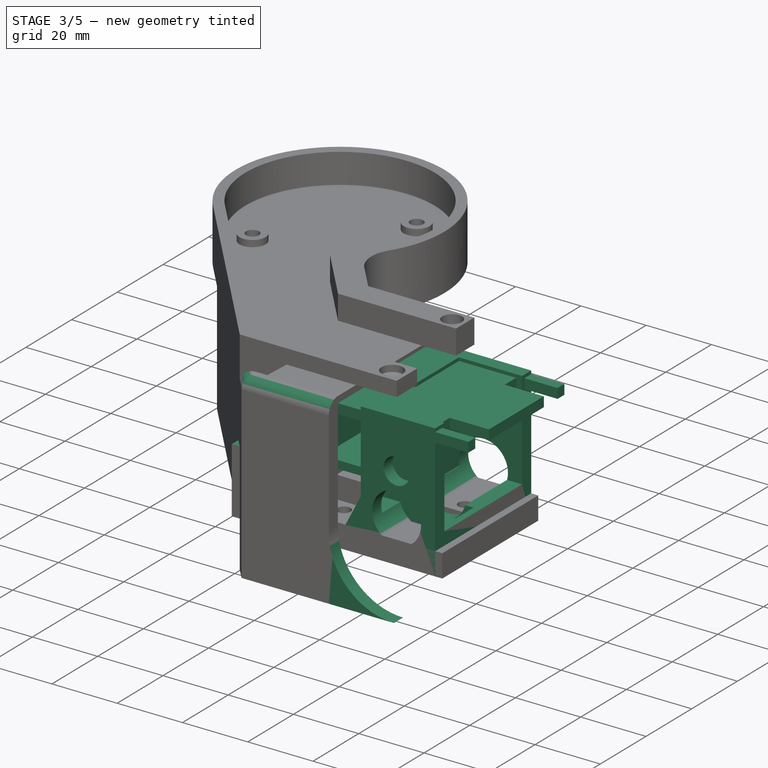
[diagram: stage 3 of 5 — iso view after this stage's code; geometry added in this stage tinted green]
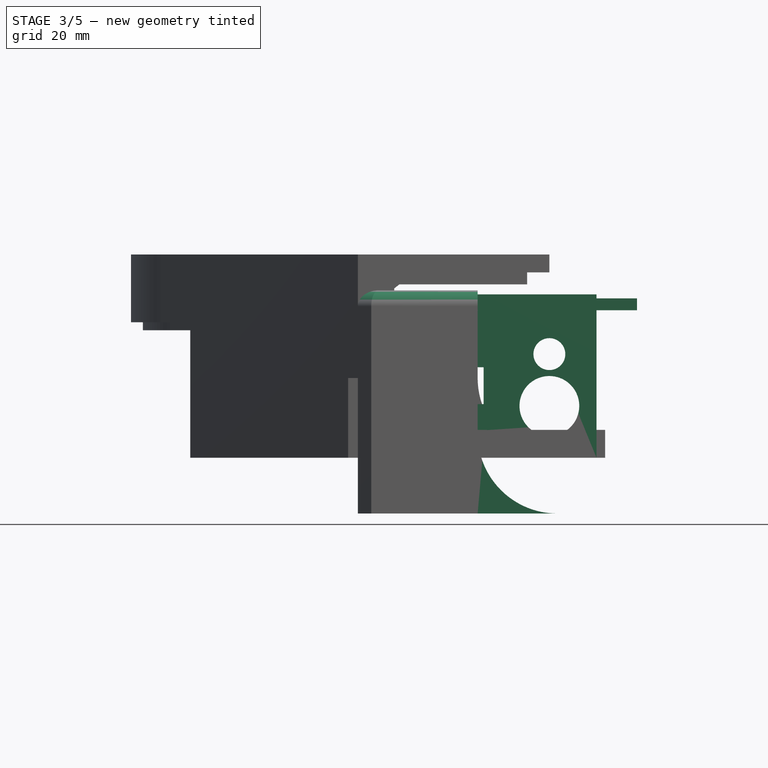
[diagram: stage 3 of 5 — front view after this stage's code; geometry added in this stage tinted green]
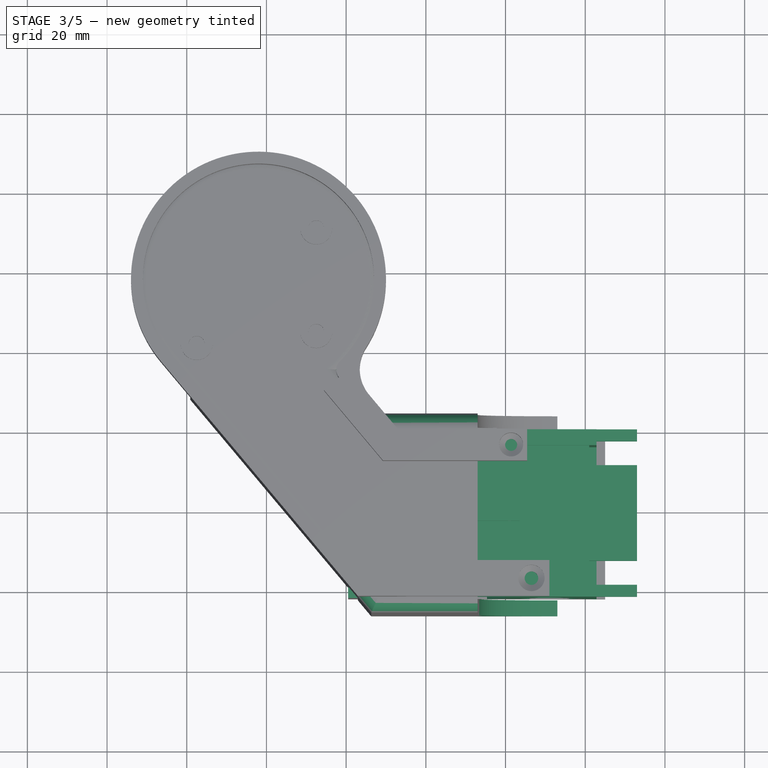
[diagram: stage 3 of 5 — top view after this stage's code; geometry added in this stage tinted green]
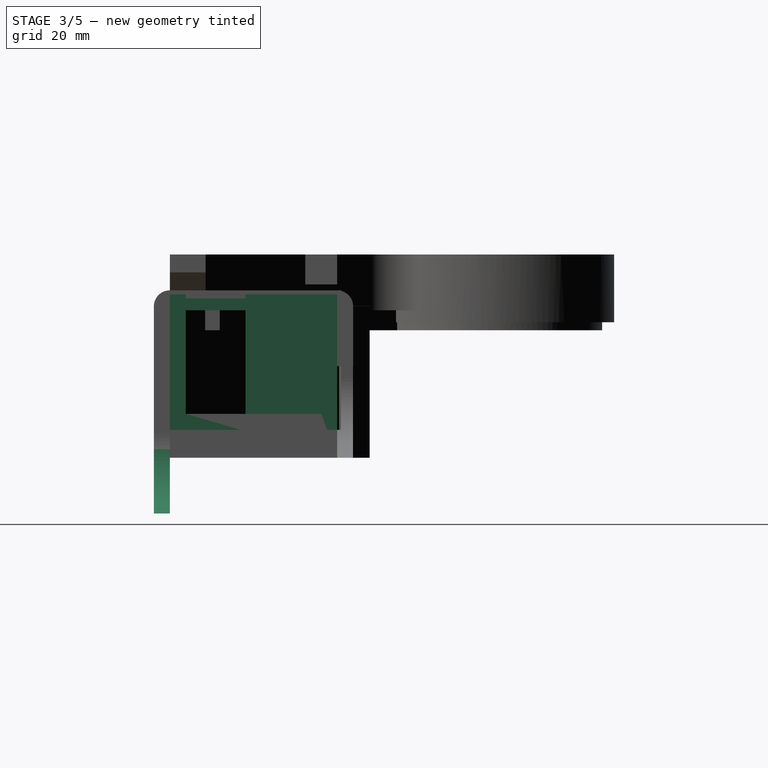
[diagram: stage 3 of 5 — right view after this stage's code; geometry added in this stage tinted green]
FEATURE [Sketcher::SketchObject] Sketch029
  ArcFitTolerance = 1e-06
  AttachmentSupport = -> [Pad015]
  FullyConstrained = true
  MakeInternals = false
  MapMode = 5
  Placement = pos=(0,-46,0) rot=(1,0,0;1.5708rad)
  sketch-geometry (3):
    g0: ArcOfCircle CenterX=33 CenterY=-31 CenterZ=0 NormalX=0 NormalY=0 NormalZ=1 AngleXU=0 Radius=20 StartAngle=3.14159 EndAngle=4.71239
    g1: LineSegment StartX=13 StartY=-31 StartZ=0 EndX=13 EndY=-51 EndZ=0
    g2: LineSegment StartX=13 StartY=-51 StartZ=0 EndX=33 EndY=-51 EndZ=0
  constraints (9):
    c: Horizontal(g0,g0)
    c: Radius(g0) = 20
    c: Coincident(g0,g1)
    c: DistanceY(g0,g-1) = 31
    c: Distance(g0,g-2) = 33
    c: Vertical(g1)
    c: DistanceY(g1,g1) = 20
    c: Coincident(g2,g1)
    c: Tangent(g2,g0) = -1.5708
FEATURE [PartDesign::Pad] Pad016
  BaseFeature = -> Pad015
  Direction = (0,-1,2e-16)
  Length = 4
  Length2 = 10
  Profile = -> Sketch029
  ReferenceAxis = -> Sketch029 [N_Axis]
  Refine = true
  Reversed = true
  Suppressed = false
  Type = 0
FEATURE [Sketcher::SketchObject] Sketch030
  ArcFitTolerance = 1e-06
  AttachmentSupport = -> [Pad016]
  FullyConstrained = true
  MakeInternals = false
  MapMode = 5
  Placement = pos=(13,0,0) rot=(0.57735,0.57735,0.57735;2.0944rad)
  sketch-geometry (4):
    g0: LineSegment StartX=-42 StartY=0 StartZ=0 EndX=0 EndY=0 EndZ=0
    g1: LineSegment StartX=-42 StartY=3 StartZ=0 EndX=-42 EndY=0 EndZ=0
    g2: LineSegment StartX=-42 StartY=3 StartZ=0 EndX=0 EndY=3 EndZ=0
    g3: LineSegment StartX=0 StartY=0 StartZ=0 EndX=0 EndY=3 EndZ=0
  constraints (11):
    c: Coincident(g1,g0)
    c: Coincident(g1,g2)
    c: PointOnObject(g2,g-2)
    c: Horizontal(g2)
    c: Coincident(g0,g3)
    c: Coincident(g3,g2)
    c: Vertical(g1)
    c: Horizontal(g0)
    c: Coincident(g0,g-1)
    c: DistanceY(g3,g3) = 3
    c: Distance(g-2,g1) = 42
FEATURE [PartDesign::Pad] Pad017
  BaseFeature = -> Pad016
  Direction = (1,0,0)
  Length = 40
  Length2 = 10
  Profile = -> Sketch030
  ReferenceAxis = -> Sketch030 [N_Axis]
  Refine = true
  Suppressed = false
  Type = 0
FEATURE [App::Link] Link007  label="Spreadsheet"
  LinkedObject = -> <external Robot.FCStd>#Spreadsheet
FEATURE [App::Link] Link009  label="Limit switch"
  LinkPlacement = pos=(1.50001,-38,-34.5) rot=(0.57735,0.57735,0.57735;4.18879rad)
  LinkedObject = -> <external GT2_80.FCStd>#Part__Feature
  Placement = pos=(1.50001,-38,-34.5) rot=(0.57735,0.57735,0.57735;4.18879rad)
FEATURE [Spreadsheet::Sheet] Spreadsheet  label="SpreadSheet"
  cells = A1='BaseWidth; B1(BaseWidth)=64; D1='TopThickness; E1(TopThickness)=2; G1='TeethNum; H1(TeethNum)=64; A2='BaseRectWidth; B2(BaseRectWidth)=40; D2='TopBearingHeight; E2(TopBearingHeight)=8; G2='CenterGearShaft; H2(CenterGearShaft)=0; A3='BaseRectHeight; B3(BaseRectHeight)=28; D3='TopBearingHole; E3(TopBearingHole)=25; G3='CutAngle; H3(CutAngle)=45; A4='HoleDiamter; B4(HoleDiamter)=28; D4='TopBearingDiameter; E4(TopBearingDiameter)=37; G4='ShaftDiameter; H4(ShaftDiameter)=6; A5='ScrewHoleDiamter; B5(ScrewHoleDiamter)=4.5; D5='TopThrustBearingHeight; E5(TopThrustBearingHeight)=4; G5='ShaftLength; H5(ShaftLength)=20; A6='CenterToScrewHole; B6(CenterToScrewHole)=24.5; D6='TopThrustBearingDiameter; E6(TopThrustBearingDiameter)=47; A7='Width; B7(Width)=120; D7='TopDiameter; E7(TopDiameter)=64; G7='GripperVerticalThread; H7(GripperVerticalThread)=5; A8='Length; B8(Length)=150; D8='TopFaceWidth; E8(TopFaceWidth)=50; G8='GripperVerticalBolt; H8(GripperVerticalBolt)=8; A9='Height; B9(Height)=70; D9='TopFaceSize; E9(TopFaceSize)=200; G9='GripperCenterToFork; H9(GripperCenterToFork)=10; A10='FirstLayerDepth; B10(FirstLayerDepth)=12; D10='SecondArmHeight; E10(SecondArmHeight)=37; G10='GripperForkDiameter; H10(GripperForkDiameter)=2; A11='UpperThickness; B11(UpperThickness)=5; D11='TopFaceHeight; E11(TopFaceHeight)=42; A12='UpperHeight; B12(UpperHeight)=80; D12='TopGearHoleDiameter; E12(TopGearHoleDiameter)=54; A13='StepperCenterToScewHole; B13(StepperCenterToScewHole)=15.5; D13='SecondShaftStepperHolderHeight; E13(SecondShaftStepperHolderHeight)=5; A14='ContactBaseWidth; B14(ContactBaseWidth)=10; D14='CenterToStepper; E14(CenterToStepper)=200; A15='StepperScrewHole; B15(StepperScrewHole)=3; D15='StepperSize; E15(StepperSize)=42; A16='MainShaftScrewBase; B16(MainShaftScrewBase)=11; D16='StepperHeight; E16(StepperHeight)=20; A17='MainShaftSize; B17(MainShaftSize)=60; D17='StepperMainHole; E17(StepperMainHole)=22; A18='MainShaftHolder; B18(MainShaftHolder)=23; D18='StepperCenterToScrew; E18(StepperCenterToScrew)=15.5; A19='MainShaftScrewDepth; B19(MainShaftScrewDepth)=5; D19='CuroaHoleSize; E19(CuroaHoleSize)=40; D20='ConnectMainArmHoleSpace; E20(ConnectMainArmHoleSpace)=5; A21='ContactHeight; B21(ContactHeight)=5; D21='SecondShaftScrewHole; E21(SecondShaftScrewHole)=5; A22='FirstArmHeight; B22(FirstArmHeight)=40; D22='SecondShaftThroughHole; E22(SecondShaftThroughHole)=8; A23='FirstArmInnerDiameter; B23(FirstArmInnerDiameter)=28; D23='BottomBearingInnerDiameter; E23(BottomBearingInnerDiameter)=40; A24='FirstArmInnerSpaceDiameter; B24(FirstArmInnerSpaceDiameter)=45; D24='BottomBearingOuterDiameter; E24(BottomBearingOuterDiameter)=52; A25='OuterDiameter; B25(OuterDiameter)=90; D25='BottomBearingHeight; E25(BottomBearingHeight)=7; A26='ContactArmWith; B26(ContactArmWith)=54; A27='ContactArmLength; B27(ContactArmLength)=15; A29='UpperBearingHole; B29(UpperBearingHole)=8; A30='UpperBearingInner; B30(UpperBearingInner)=6; A31='UpperBearingInnerDepth; B31(UpperBearingInnerDepth)=1; A32='UpperBearingOuter; B32(UpperBearingOuter)=8.1; A33='UpperBearingOuterDepth; B33(UpperBearingOuterDepth)=4; A34='LowerBearingHole; B34(LowerBearingHole)=10; A35='LowerBearingInner; B35(LowerBearingInner)=13.1; A36='LowerBearingInnerDepth; B36(LowerBearingInnerDepth)=1; A37='LowerBearingOuter; B37(LowerBearingOuter)=15.1; A38='LowerBearingOuterDepth; B38(LowerBearingOuterDepth)=4; A39='CenterSpace; B39(CenterSpace)=31; A40='UpperLowerSpace; B40(UpperLowerSpace)=13; A41='FirstToSecondHoleSpace; B41(FirstToSecondHoleSpace)=13; A42='GripperLowerBearingHole; B42(GripperLowerBearingHole)=8.1; A43='GripperUpperBearingHole; B43(GripperUpperBearingHole)=8.1; A44='GripperThickness; B44(GripperThickness)=1; A45='GripperLowerHoleDiameter; B45(GripperLowerHoleDiameter)=5; A46='GripperWidth; B46(GripperWidth)=44; A47='ThirdArmWidth; B47(ThirdArmWidth)=50; A48='ThirdArmLength; B48(ThirdArmLength)=100
FEATURE [App::Link] Link010  label="Spreadsheet001"
  LinkedObject = -> Spreadsheet
FEATURE [Sketcher::SketchObject] Sketch035
  ArcFitTolerance = 1e-06
  AttachmentSupport = -> [XZ_Plane007]
  FullyConstrained = true
  MakeInternals = false
  MapMode = 5
  Placement = pos=(0,0,0) rot=(1,0,0;1.5708rad)
  expr: Constraints[15] = <<Spreadsheet001>>.UpperLowerSpace
  expr: Constraints[7] = <<Spreadsheet001>>.CenterSpace
  sketch-geometry (6):
    g0: LineSegment StartX=42.83 StartY=-37 StartZ=0 EndX=42.83 EndY=4 EndZ=0
    g1: LineSegment StartX=42.83 StartY=4 StartZ=0 EndX=-19.5 EndY=4 EndZ=0
    g2: LineSegment StartX=-19.5 StartY=-37 StartZ=0 EndX=42.83 EndY=-37 EndZ=0
    g3: Circle CenterX=31 CenterY=-24 CenterZ=0 NormalX=0 NormalY=0 NormalZ=1 AngleXU=0 Radius=7.5
    g4: LineSegment StartX=-19.5 StartY=4 StartZ=0 EndX=-19.5 EndY=-37 EndZ=0
    g5: Circle CenterX=31 CenterY=-11 CenterZ=0 NormalX=0 NormalY=0 NormalZ=1 AngleXU=0 Radius=4
  constraints (18):
    c: Coincident(g0,g1)
    c: Vertical(g0)
    c: Horizontal(g1)
    c: Horizontal(g2)
    c: Coincident(g4,g2)
    c: Vertical(g4)
    c: Coincident(g0,g2)
    c: Distance(g3,g-2) = 31
    c: Diameter(g3) = 15
    c: Diameter(g5) = 8
    c: Vertical(g3,g5)
    c: Distance(g-1,g1) = 4
    c: Distance(g-1,g2) = 37
    c: Distance(g0,g-2) = 42.83
    c: Distance(g3,g2) = 13
    c: DistanceY(g3,g5) = 13
    c: Coincident(g1,g4)
    c: Distance(g-2,g4) = 19.5
FEATURE [PartDesign::Pad] Pad019
  Direction = (0,-1,2e-16)
  Length = 42
  Length2 = 10
  Placement = pos=(0,0,0) rot=(1,0,0;1.5708rad)
  Profile = -> Sketch035
  ReferenceAxis = -> Sketch035 [N_Axis]
  Refine = true
  Suppressed = false
  Type = 0
FEATURE [Sketcher::SketchObject] Sketch036
  ArcFitTolerance = 1e-06
  AttachmentSupport = -> [Pad019]
  ExternalGeometry = -> [Pad019]
  FullyConstrained = false
  MakeInternals = false
  MapMode = 5
  Placement = pos=(0,1.8e-15,4) rot=(0,0,1;3.14159rad)
  sketch-geometry (7):
    g0: LineSegment StartX=-50.4105 StartY=38 StartZ=0 EndX=-50.4105 EndY=18.9532 EndZ=0
    g1: LineSegment StartX=41.4002 StartY=23 StartZ=0 EndX=41.4002 EndY=38 EndZ=0
    g2: LineSegment StartX=41.4002 StartY=38 StartZ=0 EndX=-50.4105 EndY=38 EndZ=0
    g3: LineSegment StartX=-50.4105 StartY=18.9532 StartZ=0 EndX=-50.4105 EndY=4 EndZ=0
    g4: LineSegment StartX=-50.4105 StartY=4 StartZ=0 EndX=-23.5 EndY=4 EndZ=0
    g5: LineSegment StartX=-23.5 StartY=4 StartZ=0 EndX=-23.5 EndY=23 EndZ=0
    g6: LineSegment StartX=-23.5 StartY=23 StartZ=0 EndX=41.4002 EndY=23 EndZ=0
  constraints (18):
    c: Coincident(g1,g2)
    c: Coincident(g2,g0)
    c: Vertical(g0)
    c: Vertical(g1)
    c: Horizontal(g2)
    c: Coincident(g3,g4)
    c: Coincident(g4,g5)
    c: Vertical(g3)
    c: Vertical(g5)
    c: Horizontal(g4)
    c: Coincident(g3,g0)
    c: Coincident(g6,g5)
    c: Coincident(g6,g1)
    c: Horizontal(g6)
    c: Distance(g-1,g4) = 4
    c: Distance(g-2,g5) = 23.5
    c: Distance(g-3,g2) = 4
    c: Distance(g-1,g6) = 23
FEATURE [PartDesign::Pocket] Pocket015
  BaseFeature = -> Pad019
  Direction = (0,0,-1)
  Length = 30
  Length2 = 5
  Placement = pos=(0,0,0) rot=(1,0,0;1.5708rad)
  Profile = -> Sketch036
  ReferenceAxis = -> Sketch036 [N_Axis]
  Refine = true
  Suppressed = false
  Type = 0
FEATURE [Sketcher::SketchObject] Sketch037
  ArcFitTolerance = 1e-06
  AttachmentSupport = -> [Pocket015]
  ExternalGeometry = -> [Pocket015]
  FullyConstrained = false
  MakeInternals = false
  MapMode = 5
  Placement = pos=(0,0,-26) rot=(0,0,1;3.14159rad)
  sketch-geometry (15):
    g0: LineSegment StartX=-40.79 StartY=30.0707 StartZ=0 EndX=-40.79 EndY=22.3263 EndZ=0
    g1: LineSegment StartX=-40.79 StartY=22.3263 StartZ=0 EndX=-8.42993 EndY=22.3263 EndZ=0
    g2: Circle CenterX=-31 CenterY=15 CenterZ=0 NormalX=0 NormalY=0 NormalZ=1 AngleXU=0 Radius=1.5
    g3: Circle CenterX=15 CenterY=25 CenterZ=0 NormalX=0 NormalY=0 NormalZ=1 AngleXU=0 Radius=1.5
    g4: Circle CenterX=0 CenterY=35 CenterZ=0 NormalX=0 NormalY=0 NormalZ=1 AngleXU=0 Radius=1.5
    g5: LineSegment StartX=-8.42993 StartY=22.3263 StartZ=0 EndX=-8.42993 EndY=15.2343 EndZ=0
    g6: LineSegment StartX=-8.42993 StartY=15.2343 StartZ=0 EndX=3.56508 EndY=15.2343 EndZ=0
    g7: LineSegment StartX=3.56508 StartY=15.2343 StartZ=0 EndX=3.56508 EndY=22.3263 EndZ=0
    g8: LineSegment StartX=3.56508 StartY=22.3263 StartZ=0 EndX=7.24123 EndY=22.3263 EndZ=0
    g9: LineSegment StartX=-16.9534 StartY=30.0707 StartZ=0 EndX=-16.9534 EndY=38 EndZ=0
    g10: LineSegment StartX=-40.79 StartY=30.0707 StartZ=0 EndX=-16.9534 EndY=30.0707 EndZ=0
    g11: LineSegment StartX=-16.9534 StartY=38 StartZ=0 EndX=9.08031 EndY=38 EndZ=0
    g12: LineSegment StartX=9.08031 StartY=38 StartZ=0 EndX=9.08031 EndY=30.0707 EndZ=0
    g13: LineSegment StartX=9.08031 StartY=30.0707 StartZ=0 EndX=7.24123 EndY=30.0707 EndZ=0
    g14: LineSegment StartX=7.24123 StartY=30.0707 StartZ=0 EndX=7.24123 EndY=22.3263 EndZ=0
  constraints (34):
    c: Coincident(g0,g1)
    c: Vertical(g0)
    c: Horizontal(g1)
    c: Diameter(g2) = 3
    c: Distance(g2,g-1) = 15
    c: Diameter(g3) = 3
    c: PointOnObject(g4,g-2)
    c: Diameter(g4) = 3
    c: DistanceY(g-1,g3) = 25
    c: DistanceY(g-1,g4) = 35
    c: Distance(g3,g-2) = 15
    c: Coincident(g5,g6)
    c: Coincident(g6,g7)
    c: Vertical(g5)
    c: Vertical(g7)
    c: Horizontal(g6)
    c: Coincident(g5,g1)
    c: Coincident(g7,g8)
    c: DistanceX(g2,g-1) = 31
    c: Vertical(g9)
    c: Coincident(g0,g10)
    c: Coincident(g10,g9)
    c: Horizontal(g10)
    c: Horizontal(g11)
    c: Coincident(g11,g12)
    c: Vertical(g12)
    c: Coincident(g12,g13)
    c: Horizontal(g13)
    c: Coincident(g13,g14)
    c: Coincident(g14,g8)
    c: Vertical(g14)
    c: Coincident(g9,g11)
    c: Horizontal(g9,g13)
    c: Horizontal(g11,g-3)
FEATURE [PartDesign::Pocket] Pocket016
  BaseFeature = -> Pocket015
  Direction = (0,0,-1)
  Length = 5
  Length2 = 5
  Placement = pos=(0,0,0) rot=(1,0,0;1.5708rad)
  Profile = -> Sketch037
  ReferenceAxis = -> Sketch037 [N_Axis]
  Refine = true
  Suppressed = false
  Type = 1
FEATURE [Sketcher::SketchObject] Sketch038
  ArcFitTolerance = 1e-06
  AttachmentSupport = -> [Pocket016]
  FullyConstrained = false
  MakeInternals = false
  MapMode = 5
  Placement = pos=(0,-42,0) rot=(1,0,0;1.5708rad)
  sketch-geometry (8):
    g0: LineSegment StartX=20 StartY=-21 StartZ=0 EndX=20 EndY=12.6879 EndZ=0
    g1: LineSegment StartX=20 StartY=12.6879 StartZ=0 EndX=-22.1888 EndY=12.6879 EndZ=0
    g2: LineSegment StartX=2.00581 StartY=-21 StartZ=0 EndX=8.1848 EndY=-30.0757 EndZ=0
    g3: LineSegment StartX=8.1848 StartY=-30.0757 StartZ=0 EndX=15.2981 EndY=-30.0757 EndZ=0
    g4: LineSegment StartX=15.2981 StartY=-30.0757 StartZ=0 EndX=20 EndY=-21 EndZ=0
    g5: LineSegment StartX=2.00581 StartY=-21 StartZ=0 EndX=2.00581 EndY=-17 EndZ=0
    g6: LineSegment StartX=2.00581 StartY=-17 StartZ=0 EndX=-22.1888 EndY=-17 EndZ=0
    g7: LineSegment StartX=-22.1888 StartY=-17 StartZ=0 EndX=-22.1888 EndY=12.6879 EndZ=0
  constraints (17):
    c: Coincident(g0,g1)
    c: Vertical(g0)
    c: Horizontal(g1)
    c: Distance(g-2,g0) = 20
    c: Coincident(g2,g3)
    c: Horizontal(g3)
    c: Coincident(g3,g4)
    c: Horizontal(g0,g2)
    c: Coincident(g0,g4)
    c: Coincident(g2,g5)
    c: Vertical(g5)
    c: Coincident(g5,g6)
    c: Coincident(g6,g7)
    c: Vertical(g7)
    c: Coincident(g1,g7)
    c: Horizontal(g6)
    c: Distance(g-3,g6) = 20
FEATURE [PartDesign::Pocket] Pocket017
  BaseFeature = -> Pocket016
  Direction = (0,1,-2e-16)
  Length = 15
  Length2 = 5
  Placement = pos=(0,0,0) rot=(1,0,0;1.5708rad)
  Profile = -> Sketch038
  ReferenceAxis = -> Sketch038 [N_Axis]
  Refine = true
  Suppressed = false
  Type = 0
FEATURE [Sketcher::SketchObject] Sketch039
  ArcFitTolerance = 1e-06
  AttachmentSupport = -> [Pocket017]
  FullyConstrained = true
  MakeInternals = false
  MapMode = 5
  Placement = pos=(0,-23,5.1e-15) rot=(1,0,0;1.5708rad)
  sketch-geometry (2):
    g0: Circle CenterX=-7.5 CenterY=-9 CenterZ=0 NormalX=0 NormalY=0 NormalZ=1 AngleXU=0 Radius=1.5
    g1: Circle CenterX=12.5 CenterY=-9 CenterZ=0 NormalX=0 NormalY=0 NormalZ=1 AngleXU=0 Radius=1.5
  constraints (6):
    c: Diameter(g0) = 3
    c: DistanceX(g0,g-1) = 7.5
    c: Diameter(g1) = 3
    c: DistanceX(g0,g1) = 20
    c: Horizontal(g0,g1)
    c: DistanceY(g0,g-1) = 9
FEATURE [PartDesign::Pocket] Pocket018
  BaseFeature = -> Pocket017
  Direction = (0,1,-2e-16)
  Length = 10
  Length2 = 5
  Placement = pos=(0,0,0) rot=(1,0,0;1.5708rad)
  Profile = -> Sketch039
  ReferenceAxis = -> Sketch039 [N_Axis]
  Refine = true
  Suppressed = false
  Type = 0
FEATURE [App::Link] Link011  label="GM12-15BY"
  LinkPlacement = pos=(2.5,-10.4,-9) rot=(1,0,0;1.5708rad)
  LinkedObject = -> <external GM12-15BY.FCStd>#LinkGroup
  Placement = pos=(2.5,-10.4,-9) rot=(1,0,0;1.5708rad)
FEATURE [Sketcher::SketchObject] Sketch040
  ArcFitTolerance = 1e-06
  AttachmentSupport = -> [Pocket018]
  ExternalGeometry = -> [Pocket018]
  FullyConstrained = true
  MakeInternals = false
  MapMode = 5
  Placement = pos=(0,-1.63e-14,-37) rot=(1,0,0;3.14159rad)
  sketch-geometry (4):
    g0: LineSegment StartX=-9.08031 StartY=38 StartZ=0 EndX=-9.08031 EndY=30.0707 EndZ=0
    g1: LineSegment StartX=-9.08031 StartY=30.0707 StartZ=0 EndX=16.9534 EndY=30.0707 EndZ=0
    g2: LineSegment StartX=-9.08031 StartY=38 StartZ=0 EndX=16.9534 EndY=38 EndZ=0
    g3: LineSegment StartX=16.9534 StartY=38 StartZ=0 EndX=16.9534 EndY=30.0707 EndZ=0
  constraints (9):
    c: Vertical(g0)
    c: Coincident(g0,g1)
    c: Coincident(g0,g-5)
    c: Coincident(g1,g-4)
    c: Coincident(g0,g2)
    c: Coincident(g2,g-4)
    c: Horizontal(g2)
    c: Coincident(g2,g3)
    c: Coincident(g3,g1)
FEATURE [PartDesign::Pad] Pad020
  BaseFeature = -> Pocket018
  Direction = (0,0,-1)
  Length = 2.5
  Length2 = 10
  Placement = pos=(0,0,0) rot=(1,0,0;1.5708rad)
  Profile = -> Sketch040
  ReferenceAxis = -> Sketch040 [N_Axis]
  Refine = true
  Reversed = true
  Suppressed = false
  Type = 0
FEATURE [Sketcher::SketchObject] Sketch041
  ArcFitTolerance = 1e-06
  AttachmentSupport = -> [Pad020]
  FullyConstrained = true
  MakeInternals = false
  MapMode = 5
  Placement = pos=(0,-38,0) rot=(-1,0,0;1.5708rad)
  sketch-geometry (2):
    g0: Circle CenterX=-6 CenterY=29 CenterZ=0 NormalX=0 NormalY=0 NormalZ=1 AngleXU=0 Radius=1.5
    g1: Circle CenterX=-6 CenterY=19.5 CenterZ=0 NormalX=0 NormalY=0 NormalZ=1 AngleXU=0 Radius=1.5
  constraints (6):
    c: Diameter(g0) = 3
    c: Diameter(g1) = 3
    c: DistanceY(g-1,g1) = 19.5
    c: DistanceY(g1,g0) = 9.5
    c: Vertical(g0,g1)
    c: Distance(g1,g-2) = 6
FEATURE [PartDesign::Pocket] Pocket019
  BaseFeature = -> Pad020
  Direction = (0,-1,-2e-16)
  Length = 5
  Length2 = 5
  Placement = pos=(0,0,0) rot=(1,0,0;1.5708rad)
  Profile = -> Sketch041
  ReferenceAxis = -> Sketch041 [N_Axis]
  Refine = true
  Suppressed = false
  Type = 1
FEATURE [Sketcher::SketchObject] Sketch042
  ArcFitTolerance = 1e-06
  AttachmentSupport = -> [Pocket019]
  FullyConstrained = false
  MakeInternals = false
  MapMode = 5
  Placement = pos=(0,-3.8e-15,0) rot=(-1,0,0;1.5708rad)
  sketch-geometry (6):
    g0: ArcOfCircle CenterX=2.5 CenterY=9 CenterZ=0 NormalX=0 NormalY=0 NormalZ=1 AngleXU=0 Radius=7.75 StartAngle=2.74605 EndAngle=7.03661
    g1: LineSegment StartX=-5 StartY=23.565 StartZ=0 EndX=-5 EndY=11.9862 EndZ=0
    g2: LineSegment StartX=-5 StartY=11.9862 StartZ=0 EndX=-4.6516 EndY=11.9862 EndZ=0
    g3: LineSegment StartX=14.5 StartY=14.3021 StartZ=0 EndX=14.5 EndY=23.565 EndZ=0
    g4: LineSegment StartX=14.5 StartY=23.565 StartZ=0 EndX=-5 EndY=23.565 EndZ=0
    g5: LineSegment StartX=8.15247 StartY=14.3021 StartZ=0 EndX=14.5 EndY=14.3021 EndZ=0
  constraints (16):
    c: DistanceX(g-1,g0) = 2.5
    c: DistanceY(g-1,g0) = 9
    c: Diameter(g0) = 15.5
    c: Coincident(g1,g2)
    c: Coincident(g5,g3)
    c: Coincident(g3,g4)
    c: Coincident(g4,g1)
    c: Vertical(g1)
    c: Vertical(g3)
    c: Horizontal(g2)
    c: Horizontal(g4)
    c: Distance(g0,g1) = 7.5
    c: Distance(g0,g3) = 12
    c: Coincident(g0,g5)
    c: Coincident(g0,g2)
    c: Horizontal(g5)
FEATURE [PartDesign::Pocket] Pocket020
  BaseFeature = -> Pocket019
  Direction = (0,-1,-2e-16)
  Length = 35
  Length2 = 5
  Placement = pos=(0,0,0) rot=(1,0,0;1.5708rad)
  Profile = -> Sketch042
  ReferenceAxis = -> Sketch042 [N_Axis]
  Refine = true
  Suppressed = false
  Type = 0
FEATURE [PartDesign::Body] Body008  label="SmallGear001"
  AllowCompound = false
  Group = -> [InvoluteGear001,Sketch043,Pocket021]
  Origin = -> Origin008
  Placement = pos=(2.5,-24,-9) rot=(1,0,0;1.5708rad)
  Tip = -> Pocket021
FEATURE [Sketcher::SketchObject] Sketch044
  ArcFitTolerance = 1e-06
  AttachmentSupport = -> [Pocket020]
  FullyConstrained = true
  MakeInternals = false
  MapMode = 5
  Placement = pos=(0,-2.52e-14,-37) rot=(1,0,0;3.14159rad)
  sketch-geometry (1):
    g0: Circle CenterX=8 CenterY=35 CenterZ=0 NormalX=0 NormalY=0 NormalZ=1 AngleXU=0 Radius=1.5
  constraints (3):
    c: Diameter(g0) = 3
    c: Distance(g0,g-2) = 8
    c: DistanceY(g-1,g0) = 35
FEATURE [PartDesign::Pocket] Pocket022
  BaseFeature = -> Pocket020
  Direction = (0,0,1)
  Length = 5
  Length2 = 5
  Placement = pos=(0,0,0) rot=(1,0,0;1.5708rad)
  Profile = -> Sketch044
  ReferenceAxis = -> Sketch044 [N_Axis]
  Refine = true
  Suppressed = false
  Type = 0
FEATURE [Sketcher::SketchObject] Sketch066
  ArcFitTolerance = 1e-06
  AttachmentSupport = -> [Fillet]
  ExternalGeometry = -> [Fillet]
  FullyConstrained = true
  MakeInternals = false
  MapMode = 5
  Placement = pos=(0,0,3) rot=(0,0,1;0rad)
  sketch-geometry (8):
    g0: LineSegment StartX=53 StartY=-3 StartZ=0 EndX=41 EndY=-3 EndZ=0
    g1: LineSegment StartX=41 StartY=-3 StartZ=0 EndX=41 EndY=-9 EndZ=0
    g2: LineSegment StartX=41 StartY=-9 StartZ=0 EndX=53 EndY=-9 EndZ=0
    g3: LineSegment StartX=53 StartY=-9 StartZ=0 EndX=53 EndY=-3 EndZ=0
    g4: LineSegment StartX=53 StartY=-39 StartZ=0 EndX=53 EndY=-33 EndZ=0
    g5: LineSegment StartX=53 StartY=-33 StartZ=0 EndX=41 EndY=-33 EndZ=0
    g6: LineSegment StartX=41 StartY=-33 StartZ=0 EndX=41 EndY=-39 EndZ=0
    g7: LineSegment StartX=41 StartY=-39 StartZ=0 EndX=53 EndY=-39 EndZ=0
  constraints (24):
    c: Coincident(g0,g1)
    c: Coincident(g1,g2)
    c: Coincident(g2,g3)
    c: Coincident(g3,g0)
    c: Horizontal(g0)
    c: Horizontal(g2)
    c: Vertical(g1)
    c: Vertical(g3)
    c: PointOnObject(g0,g-3)
    c: Coincident(g4,g5)
    c: Coincident(g5,g6)
    c: Coincident(g6,g7)
    c: Coincident(g7,g4)
    c: Vertical(g4)
    c: Vertical(g6)
    c: Horizontal(g5)
    c: Horizontal(g7)
    c: PointOnObject(g4,g-3)
    c: Distance(g-1,g0) = 3
    c: DistanceY(g1,g1) = 6
    c: Distance(g-4,g7) = 3
    c: DistanceY(g6,g6) = 6
    c: DistanceX(g2,g2) = 12
    c: DistanceX(g5,g5) = 12
FEATURE [PartDesign::Pocket] Pocket037
  BaseFeature = -> Fillet
  Direction = (0,0,-1)
  Length = 5
  Length2 = 5
  Profile = -> Sketch066
  ReferenceAxis = -> Sketch066 [N_Axis]
  Refine = true
  Suppressed = false
  Type = 0
FEATURE [PartDesign::Body] Body  label="GearBox"
  AllowCompound = false
  Group = -> [Sketch,Pad,Sketch001,Pad001,Sketch002,Pad002,Sketch003,Pad003]
  Origin = -> Origin
  Placement = pos=(0,0,9.7) rot=(0,0,1;0rad)
  Tip = -> Pad003
FEATURE [Sketcher::SketchObject] Sketch004
  ArcFitTolerance = 1e-06
  AttachmentSupport = -> [XY_Plane001]
  FullyConstrained = true
  MakeInternals = false
  MapMode = 5
  sketch-geometry (1):
    g0: Circle CenterX=0 CenterY=0 CenterZ=0 NormalX=0 NormalY=0 NormalZ=1 AngleXU=0 Radius=7.5
  constraints (2):
    c: Diameter(g0) = 15
    c: Coincident(g0,g-1)
FEATURE [PartDesign::Pad] Pad004
  Direction = (0,0,1)
  Length = 10
  Length2 = 10
  Profile = -> Sketch004
  ReferenceAxis = -> Sketch004 [N_Axis]
  Refine = true
  Reversed = true
  Suppressed = false
  Type = 0
FEATURE [PartDesign::Fillet] Fillet
  Base = -> Pad004 [Edge2,Edge3]
  BaseFeature = -> Pad004
  Radius = 0.5
  Refine = true
  SupportTransform = false
  Suppressed = false
  UseAllEdges = false
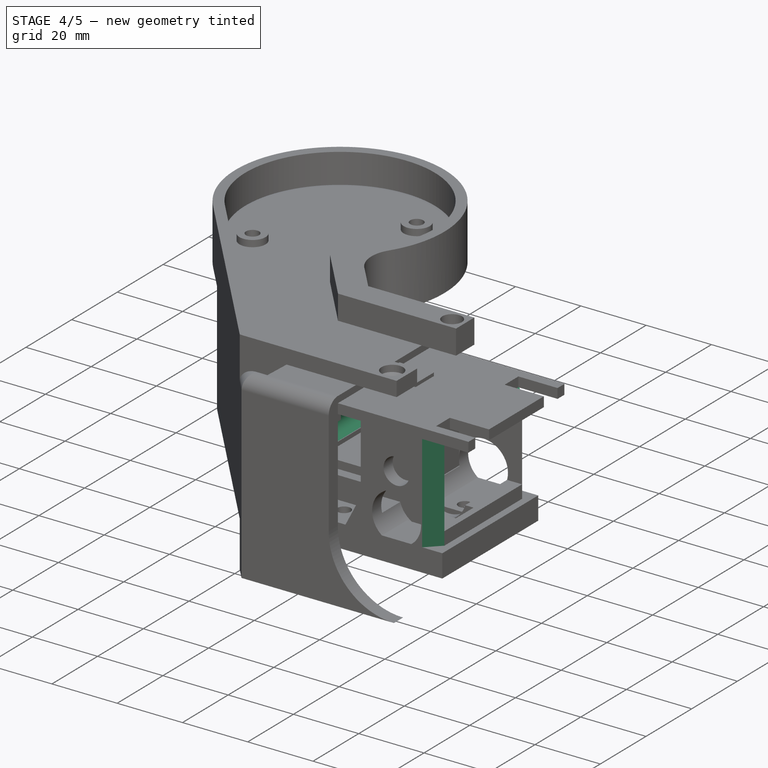
[diagram: stage 4 of 5 — iso view after this stage's code; geometry added in this stage tinted green]
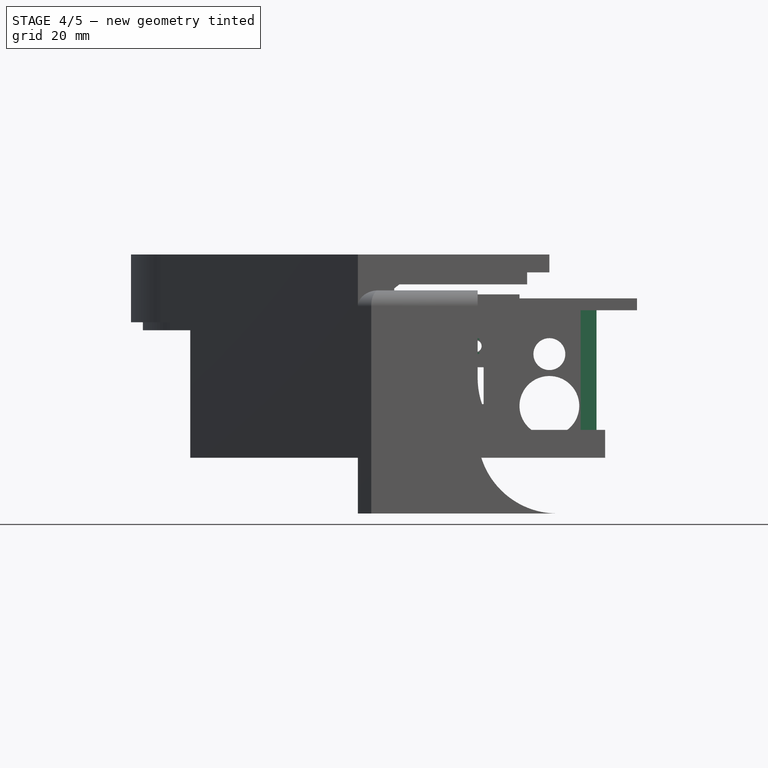
[diagram: stage 4 of 5 — front view after this stage's code; geometry added in this stage tinted green]
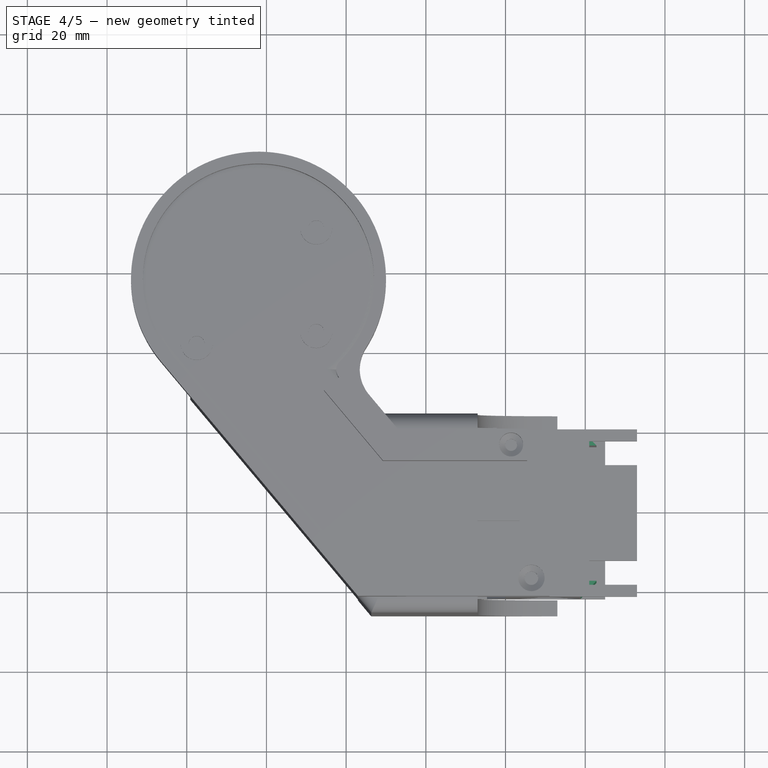
[diagram: stage 4 of 5 — top view after this stage's code; geometry added in this stage tinted green]
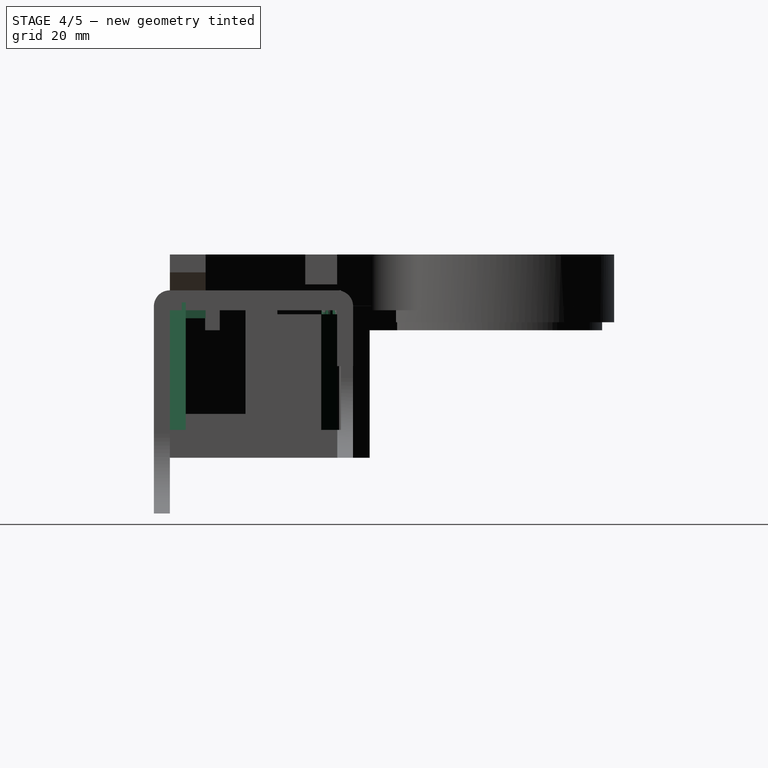
[diagram: stage 4 of 5 — right view after this stage's code; geometry added in this stage tinted green]
FEATURE [PartDesign::Chamfer] Chamfer002
  Angle = 45
  Base = -> Pocket022 [Edge7,Edge1]
  BaseFeature = -> Pocket022
  ChamferType = 0
  FlipDirection = false
  Placement = pos=(0,0,0) rot=(1,0,0;1.5708rad)
  Refine = true
  Size = 4
  Size2 = 1
  SupportTransform = false
  Suppressed = false
  UseAllEdges = false
FEATURE [Sketcher::SketchObject] Sketch045
  ArcFitTolerance = 1e-06
  AttachmentSupport = -> [Chamfer002]
  FullyConstrained = false
  MakeInternals = false
  MapMode = 5
  Placement = pos=(0,-23,5.1e-15) rot=(1,0,0;1.5708rad)
  sketch-geometry (8):
    g0: ArcOfCircle CenterX=2.5 CenterY=-9 CenterZ=0 NormalX=0 NormalY=0 NormalZ=1 AngleXU=0 Radius=7.5 StartAngle=4.12969 EndAngle=5.2949
    g1: ArcOfCircle CenterX=12.5 CenterY=-9 CenterZ=0 NormalX=0 NormalY=0 NormalZ=1 AngleXU=0 Radius=2 StartAngle=5.29475 EndAngle=7.27178
    g2: LineSegment StartX=-8.59969 StartY=-7.3276 StartZ=0 EndX=-1.62383 EndY=-2.7355 EndZ=0
    g3: LineSegment StartX=-8.60796 StartY=-10.6632 StartZ=0 EndX=-1.62713 EndY=-15.2623 EndZ=0
    g4: LineSegment StartX=6.625 StartY=-2.73627 StartZ=0 EndX=13.5997 EndY=-7.32949 EndZ=0
    g5: LineSegment StartX=13.6 StartY=-10.6703 StartZ=0 EndX=6.62595 EndY=-15.2631 EndZ=0
    g6: ArcOfCircle CenterX=2.5 CenterY=-9 CenterZ=0 NormalX=0 NormalY=0 NormalZ=1 AngleXU=0 Radius=7.5 StartAngle=0.988432 EndAngle=2.15297
    g7: ArcOfCircle CenterX=-7.5 CenterY=-8.99814 CenterZ=0 NormalX=0 NormalY=0 NormalZ=1 AngleXU=0 Radius=2 StartAngle=2.15297 EndAngle=4.12525
  constraints (21):
    c: Distance(g0,g-1) = 9
    c: DistanceX(g-1,g0) = 2.5
    c: DistanceX(g0,g1) = 10
    c: Horizontal(g0,g1)
    c: Distance(g0,g2) = 7.5
    c: Distance(g0,g3) = 7.5
    c: Distance(g0,g4) = 7.5
    c: Distance(g1,g4) = 2
    c: Distance(g0,g5) = 7.5
    c: Coincident(g0,g5)
    c: Coincident(g1,g4)
    c: Coincident(g1,g5)
    c: Coincident(g6,g0)
    c: Coincident(g6,g2)
    c: Coincident(g6,g4)
    c: Radius(g7) = 2
    c: Coincident(g7,g2)
    c: Coincident(g7,g3)
    c: DistanceX(g7,g0) = 10
    c: Distance(g7,g2) = 2
    c: Coincident(g0,g3)
FEATURE [PartDesign::Pocket] Pocket023
  BaseFeature = -> Chamfer002
  Direction = (0,1,-2e-16)
  Length = 3
  Length2 = 5
  Placement = pos=(0,0,0) rot=(1,0,0;1.5708rad)
  Profile = -> Sketch045
  ReferenceAxis = -> Sketch045 [N_Axis]
  Refine = true
  Suppressed = false
  Type = 0
FEATURE [Sketcher::SketchObject] Sketch046
  ArcFitTolerance = 1e-06
  AttachmentSupport = -> [Pocket023]
  FullyConstrained = true
  MakeInternals = false
  MapMode = 5
  Placement = pos=(0,-3.8e-15,0) rot=(-1,0,0;1.5708rad)
  sketch-geometry (2):
    g0: Circle CenterX=-6.1 CenterY=29 CenterZ=0 NormalX=0 NormalY=0 NormalZ=1 AngleXU=0 Radius=3
    g1: Circle CenterX=-6.1 CenterY=19.5 CenterZ=0 NormalX=0 NormalY=0 NormalZ=1 AngleXU=0 Radius=3
  constraints (6):
    c: Diameter(g0) = 6
    c: Diameter(g1) = 6
    c: DistanceY(g-1,g1) = 19.5
    c: DistanceY(g1,g0) = 9.5
    c: Vertical(g0,g1)
    c: DistanceX(g0,g-1) = 6.1
FEATURE [PartDesign::Pocket] Pocket024
  BaseFeature = -> Pocket023
  Direction = (0,-1,-2e-16)
  Length = 25
  Length2 = 5
  Placement = pos=(0,0,0) rot=(1,0,0;1.5708rad)
  Profile = -> Sketch046
  ReferenceAxis = -> Sketch046 [N_Axis]
  Refine = true
  Suppressed = false
  Type = 0
FEATURE [Sketcher::SketchObject] Sketch047
  ArcFitTolerance = 1e-06
  AttachmentSupport = -> [Pocket024]
  FullyConstrained = true
  MakeInternals = false
  MapMode = 5
  Placement = pos=(0,1.8e-15,4) rot=(0,0,1;3.14159rad)
  sketch-geometry (1):
    g0: Circle CenterX=15 CenterY=25 CenterZ=0 NormalX=0 NormalY=0 NormalZ=1 AngleXU=0 Radius=3
  constraints (3):
    c: Diameter(g0) = 6
    c: DistanceX(g-1,g0) = 15
    c: DistanceY(g-1,g0) = 25
FEATURE [PartDesign::Pocket] Pocket025
  BaseFeature = -> Pocket024
  Direction = (0,0,-1)
  Length = 35
  Length2 = 5
  Placement = pos=(0,0,0) rot=(1,0,0;1.5708rad)
  Profile = -> Sketch047
  ReferenceAxis = -> Sketch047 [N_Axis]
  Refine = true
  Suppressed = false
  Type = 0
FEATURE [PartDesign::Body] Body009  label="SmallGear003"
  AllowCompound = false
  Group = -> [InvoluteGear002,Sketch048,Pocket026]
  Origin = -> Origin009
  Placement = pos=(2.5,-24,-9) rot=(1,0,0;1.5708rad)
  Tip = -> Pocket026
FEATURE [Part::FeaturePython] InvoluteGear003  label="InvoluteGear004"  # WARN: FeaturePython — macro-defined, semantics opaque (R4)
  AttacherType = Attacher::AttachEngine3D
  Placement = pos=(0,0,0) rot=(1,0,0;3.14159rad)
  addendum_diameter = 7.92
  angular_backlash = 0
  axle_hole = false
  axle_holesize = 10
  backlash = 0
  clearance = 0.25
  double_helix = false
  head = 0
  head_fillet = 0
  height = 10
  helix_angle = 0
  module = 0.72
  num_teeth = 9
  numpoints = 20
  offset_hole = false
  offset_holeoffset = 10
  offset_holesize = 10
  pitch_diameter = 6.48
  pressure_angle = 20
  properties_from_tool = false
  reversed_backlash = false
  root_diameter = 4.68
  root_fillet = 0
  shift = 0
  simple = false
  transverse_pitch = 2.26195
  traverse_module = 0.72
  undercut = false
  version = 1.3.0
  expr: angular_backlash = backlash / pitch_diameter * 360 ° / pi
FEATURE [Sketcher::SketchObject] Sketch055
  ArcFitTolerance = 1e-06
  AttachmentSupport = -> [Pocket025]
  FullyConstrained = true
  MakeInternals = false
  MapMode = 5
  Placement = pos=(0,-3.8e-15,0) rot=(-1,0,0;1.5708rad)
  sketch-geometry (1):
    g0: Circle CenterX=2.5 CenterY=9 CenterZ=0 NormalX=0 NormalY=0 NormalZ=1 AngleXU=0 Radius=12.5
  constraints (3):
    c: DistanceX(g-1,g0) = 2.5
    c: DistanceY(g-1,g0) = 9
    c: Diameter(g0) = 25
FEATURE [PartDesign::Pocket] Pocket031
  BaseFeature = -> Pocket025
  Direction = (0,-1,-2e-16)
  Length = 15
  Length2 = 5
  Placement = pos=(0,0,0) rot=(1,0,0;1.5708rad)
  Profile = -> Sketch055
  ReferenceAxis = -> Sketch055 [N_Axis]
  Refine = true
  Suppressed = false
  Type = 0
FEATURE [Sketcher::SketchObject] Sketch056
  ArcFitTolerance = 1e-06
  AttachmentSupport = -> [Pocket031]
  ExternalGeometry = -> [Pocket031]
  FullyConstrained = false
  MakeInternals = false
  MapMode = 5
  Placement = pos=(0,1.8e-15,4) rot=(0,0,1;3.14159rad)
  sketch-geometry (4):
    g0: LineSegment StartX=-47.4799 StartY=15 StartZ=0 EndX=-47.4799 EndY=-6.21618 EndZ=0
    g1: LineSegment StartX=-47.4799 StartY=-6.21618 StartZ=0 EndX=23.4788 EndY=-6.21618 EndZ=0
    g2: LineSegment StartX=23.4788 StartY=-6.21618 StartZ=0 EndX=23.4788 EndY=15 EndZ=0
    g3: LineSegment StartX=23.4788 StartY=15 StartZ=0 EndX=-47.4799 EndY=15 EndZ=0
  constraints (9):
    c: Coincident(g0,g1)
    c: Coincident(g1,g2)
    c: Coincident(g2,g3)
    c: Coincident(g3,g0)
    c: Vertical(g0)
    c: Vertical(g2)
    c: Horizontal(g1)
    c: Horizontal(g3)
    c: Distance(g-1,g3) = 15
FEATURE [PartDesign::Pocket] Pocket032
  BaseFeature = -> Pocket031
  Direction = (0,0,-1)
  Length = 5
  Length2 = 5
  Placement = pos=(0,0,0) rot=(1,0,0;1.5708rad)
  Profile = -> Sketch056
  ReferenceAxis = -> Sketch056 [N_Axis]
  Refine = true
  Suppressed = false
  Type = 0
FEATURE [PartDesign::Chamfer] Chamfer003
  Angle = 40
  Base = -> Pocket032 [Edge48,Edge44]
  BaseFeature = -> Pocket032
  ChamferType = 2
  FlipDirection = false
  Placement = pos=(0,0,0) rot=(1,0,0;1.5708rad)
  Refine = true
  Size = 7
  Size2 = 1
  SupportTransform = false
  Suppressed = false
  UseAllEdges = false
FEATURE [Sketcher::SketchObject] Sketch059
  ArcFitTolerance = 1e-06
  AttachmentSupport = -> [Chamfer003]
  FullyConstrained = false
  MakeInternals = false
  MapMode = 5
  Placement = pos=(0,1.8e-15,4) rot=(0,0,1;3.14159rad)
  sketch-geometry (4):
    g0: LineSegment StartX=-49.2069 StartY=46.6697 StartZ=0 EndX=-49.2069 EndY=31.247 EndZ=0
    g1: LineSegment StartX=-49.2069 StartY=31.247 StartZ=0 EndX=-12.1923 EndY=31.247 EndZ=0
    g2: LineSegment StartX=-12.1923 StartY=31.247 StartZ=0 EndX=-12.1923 EndY=46.6697 EndZ=0
    g3: LineSegment StartX=-12.1923 StartY=46.6697 StartZ=0 EndX=-49.2069 EndY=46.6697 EndZ=0
  constraints (8):
    c: Coincident(g0,g1)
    c: Coincident(g1,g2)
    c: Coincident(g2,g3)
    c: Coincident(g3,g0)
    c: Vertical(g0)
    c: Vertical(g2)
    c: Horizontal(g1)
    c: Horizontal(g3)
FEATURE [PartDesign::Pocket] Pocket
  BaseFeature = -> Chamfer003
  Direction = (0,0,-1)
  Length = 2
  Length2 = 5
  Placement = pos=(0,0,0) rot=(1,0,0;1.5708rad)
  Profile = -> Sketch059
  ReferenceAxis = -> Sketch059 [N_Axis]
  Refine = true
  Suppressed = false
  Type = 0
FEATURE [Sketcher::SketchObject] Sketch
  ArcFitTolerance = 1e-06
  AttachmentSupport = -> [Pocket]
  ExternalGeometry = -> [Pocket]
  FullyConstrained = true
  MakeInternals = false
  MapMode = 5
  Placement = pos=(0,0,2) rot=(0,0,1;3.14159rad)
  sketch-geometry (4):
    g0: LineSegment StartX=-20 StartY=42 StartZ=0 EndX=-29 EndY=42 EndZ=0
    g1: LineSegment StartX=-29 StartY=42 StartZ=0 EndX=-29 EndY=33 EndZ=0
    g2: LineSegment StartX=-29 StartY=33 StartZ=0 EndX=-20 EndY=33 EndZ=0
    g3: LineSegment StartX=-20 StartY=33 StartZ=0 EndX=-20 EndY=42 EndZ=0
  constraints (11):
    c: Coincident(g0,g1)
    c: Coincident(g1,g2)
    c: Coincident(g2,g3)
    c: Coincident(g3,g0)
    c: Horizontal(g0)
    c: Horizontal(g2)
    c: Vertical(g1)
    c: Vertical(g3)
    c: Distance(g1,g3) = 9
    c: Distance(g0,g2) = 9
    c: Coincident(g0,g-3)
FEATURE [PartDesign::Pad] Pad
  BaseFeature = -> Pocket
  Direction = (0,0,1)
  Length = 4
  Length2 = 10
  Placement = pos=(0,0,0) rot=(1,0,0;1.5708rad)
  Profile = -> Sketch
  ReferenceAxis = -> Sketch [N_Axis]
  Refine = true
  Reversed = true
  Suppressed = false
  Type = 0
FEATURE [Sketcher::SketchObject] Sketch060
  ArcFitTolerance = 1e-06
  AttachmentSupport = -> [Pad]
  ExternalGeometry = -> [Pad]
  FullyConstrained = true
  MakeInternals = false
  MapMode = 5
  Placement = pos=(0,7e-16,2) rot=(0,0,1;3.14159rad)
  sketch-geometry (1):
    g0: Circle CenterX=-24.5 CenterY=37.5 CenterZ=0 NormalX=0 NormalY=0 NormalZ=1 AngleXU=0 Radius=2
  constraints (2):
    c: Diameter(g0) = 4
    c: Symmetric(g-4,g-3,g0)
FEATURE [PartDesign::Pocket] Pocket034
  BaseFeature = -> Pad
  Direction = (0,0,-1)
  Length = 5
  Length2 = 5
  Placement = pos=(0,0,0) rot=(1,0,0;1.5708rad)
  Profile = -> Sketch060
  ReferenceAxis = -> Sketch060 [N_Axis]
  Refine = true
  Suppressed = false
  Type = 0
FEATURE [Sketcher::SketchObject] Sketch064
  ArcFitTolerance = 1e-06
  AttachmentSupport = -> [Pocket034]
  FullyConstrained = true
  MakeInternals = false
  MapMode = 5
  Placement = pos=(0,0,-1) rot=(0,0,1;3.14159rad)
  sketch-geometry (1):
    g0: Circle CenterX=-19.4 CenterY=4 CenterZ=0 NormalX=0 NormalY=0 NormalZ=1 AngleXU=0 Radius=2
  constraints (3):
    c: Diameter(g0) = 4
    c: Distance(g0,g-1) = 4
    c: DistanceX(g0,g-1) = 19.4
FEATURE [PartDesign::Pocket] Pocket036
  BaseFeature = -> Pocket034
  Direction = (0,0,-1)
  Length = 5
  Length2 = 5
  Placement = pos=(0,0,0) rot=(1,0,0;1.5708rad)
  Profile = -> Sketch064
  ReferenceAxis = -> Sketch064 [N_Axis]
  Refine = true
  Suppressed = false
  Type = 0
FEATURE [Sketcher::SketchObject] Sketch
  ArcFitTolerance = 1e-06
  AttachmentSupport = -> [InvoluteGear001]
  FullyConstrained = false
  MakeInternals = false
  MapMode = 5
  Placement = pos=(0,-10,0) rot=(1,0,0;1.5708rad)
  expr: Constraints[10] = 360 - <<Spreadsheet>>.CutAngle * 2
  expr: Constraints[12] = <<Spreadsheet>>.ShaftDiameter * 2
  expr: Constraints[2] = <<Spreadsheet>>.CutAngle
  expr: Constraints[3] = 180 - <<Spreadsheet>>.CutAngle
  expr: Constraints[9] = 0 mm
  sketch-geometry (8):
    g0: ArcOfCircle CenterX=0 CenterY=0 CenterZ=0 NormalX=0 NormalY=0 NormalZ=1 AngleXU=0 Radius=9 StartAngle=2.35358 EndAngle=7.06597
    g1: LineSegment StartX=6.38059 StartY=6.34728 StartZ=0 EndX=39.2109 EndY=39.1775 EndZ=0
    g2: LineSegment StartX=-6.34728 StartY=6.38059 StartZ=0 EndX=-39.1775 EndY=39.2109 EndZ=0
    g3: ArcOfCircle CenterX=0 CenterY=0 CenterZ=0 NormalX=0 NormalY=0 NormalZ=1 AngleXU=0 Radius=55.429 StartAngle=2.35577 EndAngle=7.06816
    g4: ArcOfCircle CenterX=0 CenterY=0 CenterZ=0 NormalX=0 NormalY=0 NormalZ=1 AngleXU=0 Radius=6 StartAngle=1.82348 EndAngle=7.60029
    g5: LineSegment StartX=-1.5 StartY=8 StartZ=0 EndX=-1.5 EndY=5.80948 EndZ=0
    g6: LineSegment StartX=1.50588 StartY=5.80795 StartZ=0 EndX=1.50588 EndY=8 EndZ=0
    g7: LineSegment StartX=1.50588 StartY=8 StartZ=0 EndX=-1.5 EndY=8 EndZ=0
  constraints (22):
    c: Diameter(g0) = 18
    c: PointOnObject(g0,g-2)
    c: Angle(g-1,g1) = 0.785398
    c: Angle(g-1,g2) = 2.35619
    c: Coincident(g3,g0)
    c: Coincident(g2,g3)
    c: Coincident(g1,g3)
    c: Coincident(g2,g0)
    c: Coincident(g1,g0)
    c: DistanceY(g0,g-1) = 0
    c: Angle(g0) = 4.71239
    c: Coincident(g4,g0)
    c: Diameter(g4) = 12
    c: Coincident(g6,g7)
    c: Coincident(g7,g5)
    c: Vertical(g5)
    c: Vertical(g6)
    c: Horizontal(g7)
    c: Distance(g-2,g5) = 1.5
    c: Distance(g4,g7) = 2
    c: Coincident(g5,g4)
    c: Coincident(g6,g4)
FEATURE [PartDesign::Pocket] Pocket
  BaseFeature = -> InvoluteGear001
  Direction = (0,1,-2e-16)
  Length = 5
  Length2 = 5
  Placement = pos=(0,0,0) rot=(-1,0,0;4.71239rad)
  Profile = -> Sketch
  ReferenceAxis = -> Sketch [N_Axis]
  Refine = true
  Suppressed = false
  Type = 1
FEATURE [Sketcher::SketchObject] Sketch002
  ArcFitTolerance = 1e-06
  AttachmentSupport = -> [Pocket001]
  FullyConstrained = false
  MakeInternals = false
  MapMode = 5
  Placement = pos=(0,-5,0) rot=(1,0,0;1.5708rad)
  sketch-geometry (4):
    g0: ArcOfCircle CenterX=0 CenterY=0 CenterZ=0 NormalX=0 NormalY=0 NormalZ=1 AngleXU=0 Radius=25 StartAngle=1.41976 EndAngle=1.73335
    g1: ArcOfCircle CenterX=-3.56037 CenterY=21.71 CenterZ=0 NormalX=0 NormalY=0 NormalZ=1 AngleXU=0 Radius=3 StartAngle=1.73335 EndAngle=4.87494
    g2: ArcOfCircle CenterX=3.31009 CenterY=21.7496 CenterZ=0 NormalX=0 NormalY=0 NormalZ=1 AngleXU=0 Radius=3 StartAngle=4.56136 EndAngle=7.70295
    g3: ArcOfCircle CenterX=0 CenterY=0 CenterZ=0 NormalX=0 NormalY=0 NormalZ=1 AngleXU=0 Radius=19 StartAngle=1.41976 EndAngle=1.73335
  constraints (8):
    c: Coincident(g0,g3)
    c: Tangent(g3,g2) = 1.5708
    c: Tangent(g3,g1) = 1.5708
    c: Tangent(g0,g2) = -1.5708
    c: Tangent(g0,g1) = -1.5708
    c: Coincident(g0,g-1)
    c: Radius(g2) = 3
    c: Distance(g2,g-1) = 22
FEATURE [PartDesign::Pad] Pad
  BaseFeature = -> Pocket001
  Direction = (0,-1,2e-16)
  Length = 6.5
  Length2 = 10
  Placement = pos=(0,0,0) rot=(-1,0,0;4.71239rad)
  Profile = -> Sketch002
  ReferenceAxis = -> Sketch002 [N_Axis]
  Refine = true
  Suppressed = false
  Type = 0
FEATURE [PartDesign::Body] Body  label="QuaterGear"
  AllowCompound = false
  Group = -> [InvoluteGear001,Sketch,Pocket,Sketch001,Pocket001,Sketch002,Pad]
  Origin = -> Origin001
  Tip = -> Pad
---- part Robot.FCStd = doc fcstd_74aedbbb681d ----
FCSTD DOCUMENT  (FreeCAD 1.0R39319 (Git))
Label: Robot
License: All rights reserved
LicenseURL: https://en.wikipedia.org/wiki/All_rights_reserved
objects: App::Link×5, Spreadsheet::Sheet×1, Sketcher::SketchObject×1, PartDesign::Body×1
note: 3 computed .brp shape members not serialized (recipe doc carries the construction recipe); baked Part::Feature solids carry a one-line shape summary decoded from their .brp
EXTERNAL_REF file=DisplayHolder.FCStd obj=LinkGroup
EXTERNAL_REF file=RobotBody.FCStd obj=Body002
EXTERNAL_REF file=GT2_80.FCStd obj=LinkGroup
EXTERNAL_REF file=RobotBody.FCStd obj=LinkGroup
EXTERNAL_REF file=ChessBoard.FCStd obj=LinkGroup

FEATURE [Spreadsheet::Sheet] Spreadsheet  label="SpreadSheet"
  cells = A1='BaseWidth; B1(BaseWidth)=64; D1='TopThickness; E1(TopThickness)=2; G1='TeethNum; H1(TeethNum)=64; A2='BaseRectWidth; B2(BaseRectWidth)=40; D2='TopBearingHeight; E2(TopBearingHeight)=8; G2='CenterGearShaft; H2(CenterGearShaft)=0; A3='BaseRectHeight; B3(BaseRectHeight)=28; D3='TopBearingHole; E3(TopBearingHole)=25; G3='CutAngle; H3(CutAngle)=45; A4='HoleDiamter; B4(HoleDiamter)=28; D4='TopBearingDiameter; E4(TopBearingDiameter)=37; G4='ShaftDiameter; H4(ShaftDiameter)=6; A5='ScrewHoleDiamter; B5(ScrewHoleDiamter)=4.5; D5='TopThrustBearingHeight; E5(TopThrustBearingHeight)=4; G5='ShaftLength; H5(ShaftLength)=20; A6='CenterToScrewHole; B6(CenterToScrewHole)=24.5; D6='TopThrustBearingDiameter; E6(TopThrustBearingDiameter)=47; A7='Width; B7(Width)=120; D7='TopDiameter; E7(TopDiameter)=64; G7='GripperVerticalThread; H7(GripperVerticalThread)=5; A8='Length; B8(Length)=150; D8='TopFaceWidth; E8(TopFaceWidth)=50; G8='GripperVerticalBolt; H8(GripperVerticalBolt)=8; A9='Height; B9(Height)=70; D9='TopFaceSize; E9(TopFaceSize)=200; G9='GripperCenterToFork; H9(GripperCenterToFork)=10; A10='FirstLayerDepth; B10(FirstLayerDepth)=12; D10='SecondArmHeight; E10(SecondArmHeight)=37; G10='GripperForkDiameter; H10(GripperForkDiameter)=2; A11='UpperThickness; B11(UpperThickness)=5; D11='TopFaceHeight; E11(TopFaceHeight)=42; A12='UpperHeight; B12(UpperHeight)=80; D12='TopGearHoleDiameter; E12(TopGearHoleDiameter)=54; A13='StepperCenterToScewHole; B13(StepperCenterToScewHole)=15.5; D13='SecondShaftStepperHolderHeight; E13(SecondShaftStepperHolderHeight)=5; A14='ContactBaseWidth; B14(ContactBaseWidth)=10; D14='CenterToStepper; E14(CenterToStepper)=200; A15='StepperScrewHole; B15(StepperScrewHole)=3; D15='StepperSize; E15(StepperSize)=42; A16='MainShaftScrewBase; B16(MainShaftScrewBase)=11; D16='StepperHeight; E16(StepperHeight)=20; A17='MainShaftSize; B17(MainShaftSize)=60; D17='StepperMainHole; E17(StepperMainHole)=22; A18='MainShaftHolder; B18(MainShaftHolder)=23; D18='StepperCenterToScrew; E18(StepperCenterToScrew)=15.5; A19='MainShaftScrewDepth; B19(MainShaftScrewDepth)=5; D19='CuroaHoleSize; E19(CuroaHoleSize)=40; D20='ConnectMainArmHoleSpace; E20(ConnectMainArmHoleSpace)=5; A21='ContactHeight; B21(ContactHeight)=5; D21='SecondShaftScrewHole; E21(SecondShaftScrewHole)=4; A22='FirstArmHeight; B22(FirstArmHeight)=40; D22='SecondShaftThroughHole; E22(SecondShaftThroughHole)=8; A23='FirstArmInnerDiameter; B23(FirstArmInnerDiameter)=28; D23='BottomBearingInnerDiameter; E23(BottomBearingInnerDiameter)=40; A24='FirstArmInnerSpaceDiameter; B24(FirstArmInnerSpaceDiameter)=45; D24='BottomBearingOuterDiameter; E24(BottomBearingOuterDiameter)=52; A25='OuterDiameter; B25(OuterDiameter)=90; D25='BottomBearingHeight; E25(BottomBearingHeight)=7; A26='ContactArmWith; B26(ContactArmWith)=54; A27='ContactArmLength; B27(ContactArmLength)=15; A29='UpperBearingHole; B29(UpperBearingHole)=8; A30='UpperBearingInner; B30(UpperBearingInner)=6; A31='UpperBearingInnerDepth; B31(UpperBearingInnerDepth)=1; A32='UpperBearingOuter; B32(UpperBearingOuter)=8.1; A33='UpperBearingOuterDepth; B33(UpperBearingOuterDepth)=4; A34='LowerBearingHole; B34(LowerBearingHole)=10; A35='LowerBearingInner; B35(LowerBearingInner)=13.1; A36='LowerBearingInnerDepth; B36(LowerBearingInnerDepth)=1; A37='LowerBearingOuter; B37(LowerBearingOuter)=15.1; A38='LowerBearingOuterDepth; B38(LowerBearingOuterDepth)=4; A39='CenterSpace; B39(CenterSpace)=31; A40='UpperLowerSpace; B40(UpperLowerSpace)=13; A41='FirstToSecondHoleSpace; B41(FirstToSecondHoleSpace)=13; A42='GripperLowerBearingHole; B42(GripperLowerBearingHole)=8.1; A43='GripperUpperBearingHole; B43(GripperUpperBearingHole)=8.1; A44='GripperThickness; B44(GripperThickness)=1; A45='GripperLowerHoleDiameter; B45(GripperLowerHoleDiameter)=5; A46='GripperWidth; B46(GripperWidth)=44; A47='ThirdArmWidth; B47(ThirdArmWidth)=50; A48='ThirdArmLength; B48(ThirdArmLength)=100
FEATURE [App::Link] Link010  label="DisplayGroup"
  LinkPlacement = pos=(-57.6,-1.23143e-05,160.9) rot=(0,0,1;0rad)
  LinkedObject = -> <external DisplayHolder.FCStd>#LinkGroup
  Placement = pos=(-57.6,-1.23143e-05,160.9) rot=(0,0,1;0rad)
FEATURE [App::Link] Link011  label="BodyHolder001"
  LinkedObject = -> <external RobotBody.FCStd>#Body002
FEATURE [App::Link] Link012  label="SecondShaft"
  LinkPlacement = pos=(224.007,129.319,49) rot=(0,0,1;3.66519rad)
  LinkedObject = -> <external GT2_80.FCStd>#LinkGroup
  Placement = pos=(224.007,129.319,49) rot=(0,0,1;3.66519rad)
FEATURE [App::Link] Link013  label="RobotBody"
  LinkedObject = -> <external RobotBody.FCStd>#LinkGroup
FEATURE [App::Link] Link014  label="WoodenChessBoard"
  LinkPlacement = pos=(-58,223.8,-82.5) rot=(0,0,1;3.14159rad)
  LinkedObject = -> <external ChessBoard.FCStd>#LinkGroup
  Placement = pos=(-58,223.8,-82.5) rot=(0,0,1;3.14159rad)
FEATURE [Sketcher::SketchObject] Sketch
  ArcFitTolerance = 1e-06
  AttachmentSupport = -> [XY_Plane]
  FullyConstrained = true
  MakeInternals = false
  MapMode = 5
  sketch-geometry (2):
    g0: LineSegment StartX=0 StartY=0 StartZ=0 EndX=0 EndY=38.08 EndZ=0
    g1: LineSegment StartX=0 StartY=38.08 StartZ=0 EndX=-74.12 EndY=38.08 EndZ=0
  constraints (6):
    c: Coincident(g0,g-1)
    c: PointOnObject(g0,g-2)
    c: Coincident(g1,g0)
    c: Horizontal(g1)
    c: DistanceX(g1,g1) = 74.12
    c: DistanceY(g0,g0) = 38.08
FEATURE [PartDesign::Body] Body
  AllowCompound = false
  Group = -> [Sketch]
  Origin = -> Origin
  Placement = pos=(-0.1,-0.1,0) rot=(0,0,1;4.71239rad)
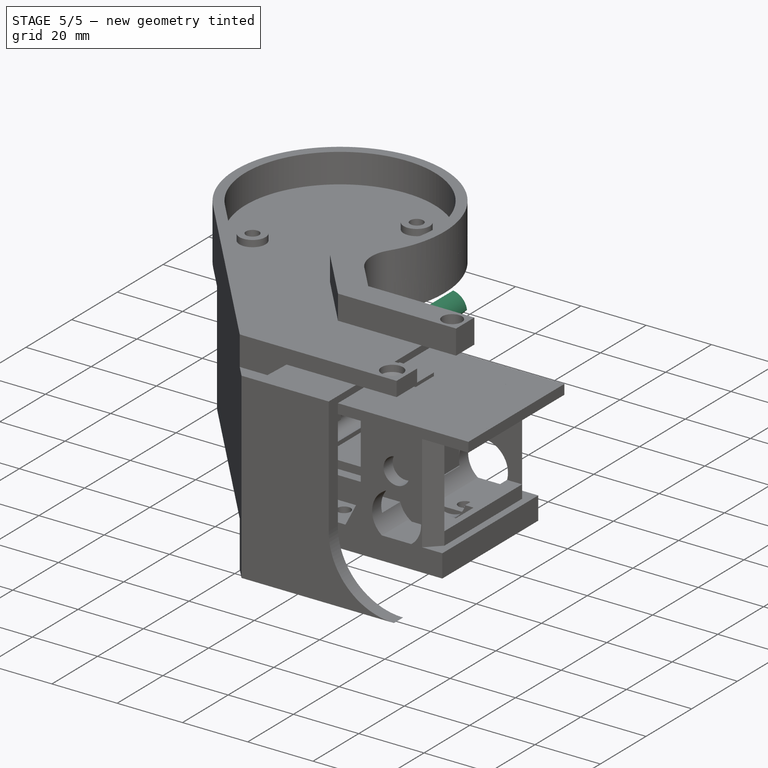
[diagram: stage 5 of 5 — iso view after this stage's code; geometry added in this stage tinted green]
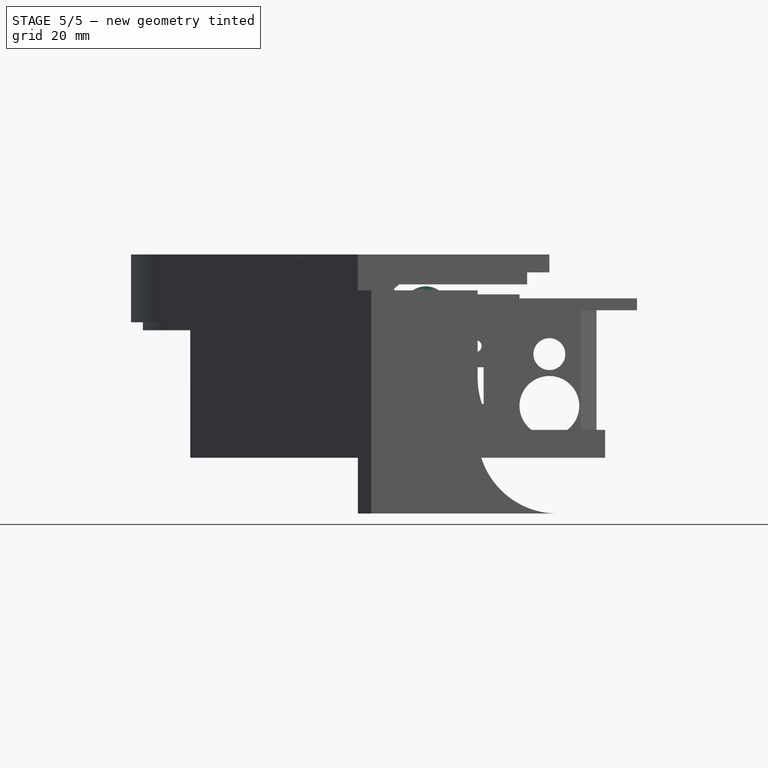
[diagram: stage 5 of 5 — front view after this stage's code; geometry added in this stage tinted green]
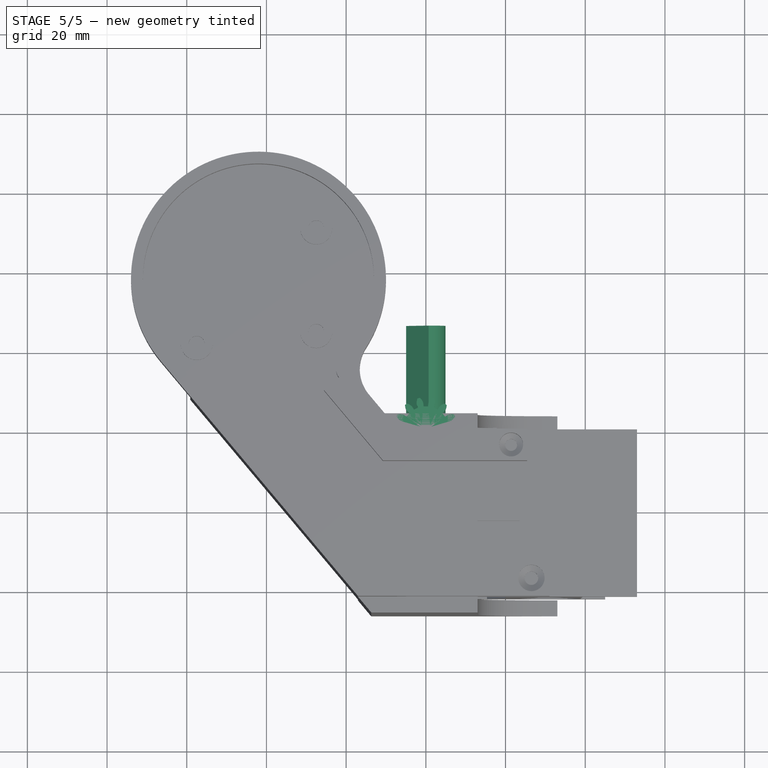
[diagram: stage 5 of 5 — top view after this stage's code; geometry added in this stage tinted green]
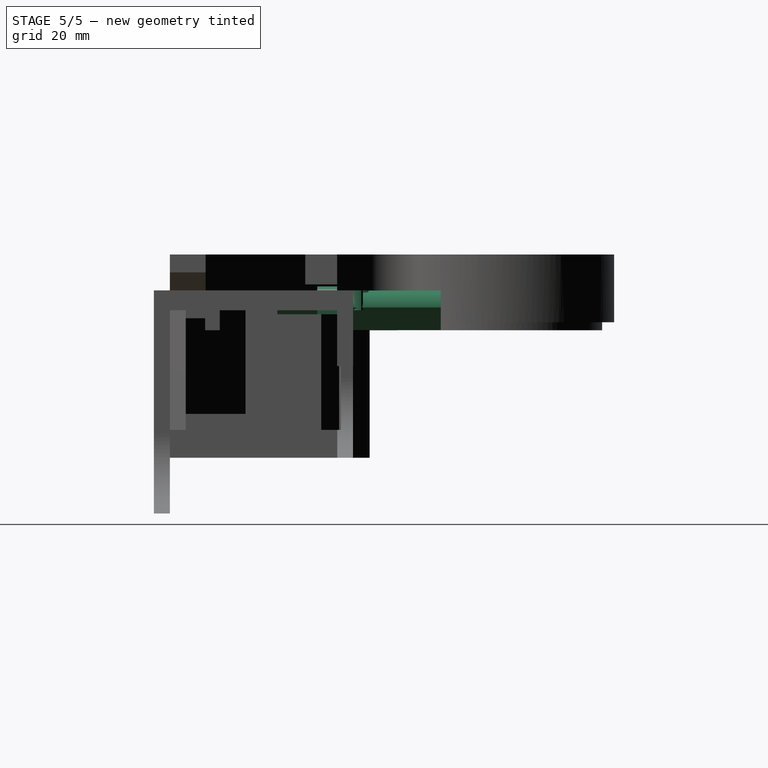
[diagram: stage 5 of 5 — right view after this stage's code; geometry added in this stage tinted green]
FEATURE [App::Link] Link  label="QuaterGear"
  LinkPlacement = pos=(31.0754,-24,-24.0312) rot=(0,-1,0;0.785398rad)
  LinkedObject = -> <external QuaterGear.FCStd>#Body
  Placement = pos=(31.0754,-24,-24.0312) rot=(0,-1,0;0.785398rad)
FEATURE [PartDesign::FeaturePython] InvoluteGear  label="InvoluteGear001"  # WARN: FeaturePython — macro-defined, semantics opaque (R4)
  AttacherType = Attacher::AttachEngine3D
  Suppressed = false
  addendum_diameter = 16
  angular_backlash = 0
  axle_hole = false
  axle_holesize = 10
  backlash = 0
  clearance = 0.25
  double_helix = false
  head = 0
  head_fillet = 0
  height = 5
  helix_angle = 0
  module = 1
  num_teeth = 14
  numpoints = 20
  offset_hole = false
  offset_holeoffset = 10
  offset_holesize = 10
  pitch_diameter = 14
  pressure_angle = 20
  properties_from_tool = false
  reversed_backlash = false
  root_diameter = 11.5
  root_fillet = 0
  shift = 0
  simple = false
  transverse_pitch = 3.14159
  traverse_module = 1
  undercut = false
  version = 1.3.0
  expr: angular_backlash = backlash / pitch_diameter * 360 ° / pi
FEATURE [Sketcher::SketchObject] Sketch002
  ArcFitTolerance = 1e-06
  AttachmentSupport = -> [InvoluteGear]
  FullyConstrained = false
  MakeInternals = false
  MapMode = 5
  Placement = pos=(0,0,5) rot=(0,0,1;0rad)
  sketch-geometry (5):
    g0: ArcOfCircle CenterX=0 CenterY=0 CenterZ=0 NormalX=0 NormalY=0 NormalZ=1 AngleXU=0 Radius=2.5 StartAngle=2.49809 EndAngle=3.78509
    g1: LineSegment StartX=2 StartY=1.5 StartZ=0 EndX=-2 EndY=1.5 EndZ=0
    g2: LineSegment StartX=-2 StartY=-1.5 StartZ=0 EndX=2 EndY=-1.5 EndZ=0
    g3: GeomPoint [constr] X=0 Y=0 Z=0
    g4: ArcOfCircle CenterX=0 CenterY=0 CenterZ=0 NormalX=0 NormalY=0 NormalZ=1 AngleXU=0 Radius=2.5 StartAngle=5.63968 EndAngle=6.92669
  constraints (10):
    c: Coincident(g0,g-1)
    c: Horizontal(g1)
    c: Horizontal(g2)
    c: Coincident(g3,g0)
    c: Equal(g0,g4)
    c: Coincident(g0,g4)
    c: Coincident(g2,g4)
    c: Coincident(g1,g4)
    c: Coincident(g1,g0)
    c: Coincident(g2,g0)
FEATURE [PartDesign::Pocket] Pocket001
  BaseFeature = -> InvoluteGear
  Direction = (0,0,-1)
  Length = 5
  Length2 = 5
  Profile = -> Sketch002
  ReferenceAxis = -> Sketch002 [N_Axis]
  Refine = true
  Suppressed = false
  Type = 1
FEATURE [PartDesign::Body] Body001  label="SmallGear"
  AllowCompound = false
  Group = -> [InvoluteGear,Sketch002,Pocket001]
  Origin = -> Origin002
  Placement = pos=(2.5,-24,-9) rot=(1,0,0;1.5708rad)
  Tip = -> Pocket001
FEATURE [Sketcher::SketchObject] Sketch004
  ArcFitTolerance = 1e-06
  AttachmentSupport = -> [XZ_Plane003]
  FullyConstrained = false
  MakeInternals = false
  MapMode = 5
  Placement = pos=(0,0,0) rot=(1,0,0;1.5708rad)
  sketch-geometry (4):
    g0: ArcOfCircle CenterX=0 CenterY=0 CenterZ=0 NormalX=0 NormalY=0 NormalZ=1 AngleXU=0 Radius=6 StartAngle=0.243488 EndAngle=6.0397
    g1: LineSegment StartX=8 StartY=1.44654 StartZ=0 EndX=5.82302 EndY=1.44654 EndZ=0
    g2: LineSegment StartX=5.82302 StartY=-1.44654 StartZ=0 EndX=8 EndY=-1.44654 EndZ=0
    g3: LineSegment StartX=8 StartY=-1.44654 StartZ=0 EndX=8 EndY=1.44654 EndZ=0
  constraints (10):
    c: Diameter(g0) = 12
    c: Coincident(g2,g3)
    c: Coincident(g3,g1)
    c: Distance(g0,g3) = 2
    c: Coincident(g1,g0)
    c: Coincident(g2,g0)
    c: Coincident(g0,g-1)
    c: Vertical(g3)
    c: Horizontal(g1)
    c: Horizontal(g2)
FEATURE [PartDesign::Pad] Pad001
  Direction = (0,-1,2e-16)
  Length = 5
  Length2 = 10
  Placement = pos=(0,0,0) rot=(1,0,0;1.5708rad)
  Profile = -> Sketch004
  ReferenceAxis = -> Sketch004 [N_Axis]
  Refine = true
  Suppressed = false
  Type = 0
FEATURE [Sketcher::SketchObject] Sketch005
  ArcFitTolerance = 1e-06
  AttachmentSupport = -> [Pad001]
  FullyConstrained = false
  MakeInternals = false
  MapMode = 5
  Placement = pos=(0,0,0) rot=(-1,0,0;1.5708rad)
  sketch-geometry (5):
    g0: ArcOfCircle CenterX=7.97057e-08 CenterY=1.58931e-06 CenterZ=0 NormalX=0 NormalY=0 NormalZ=1 AngleXU=0 Radius=5 StartAngle=1.71269 EndAngle=2.9997
    g1: LineSegment StartX=4.94975 StartY=-0.707107 StartZ=0 EndX=-0.707105 EndY=4.94975 EndZ=0
    g2: LineSegment StartX=-4.94975 StartY=0.707105 StartZ=0 EndX=0.707107 EndY=-4.94975 EndZ=0
    g3: GeomPoint [constr] X=7.97057e-08 Y=1.58931e-06 Z=0
    g4: ArcOfCircle CenterX=7.97057e-08 CenterY=1.58931e-06 CenterZ=0 NormalX=0 NormalY=0 NormalZ=1 AngleXU=0 Radius=5 StartAngle=4.85429 EndAngle=6.14129
  constraints (9):
    c: Diameter(g0) = 10
    c: Coincident(g3,g0)
    c: Coincident(g0,g1)
    c: Equal(g0,g4)
    c: Coincident(g0,g2)
    c: Coincident(g0,g4)
    c: Coincident(g1,g4)
    c: Coincident(g2,g4)
    c: Distance(g0,g1) = 3
FEATURE [PartDesign::Pad] Pad002
  BaseFeature = -> Pad001
  Direction = (0,1,2e-16)
  Length = 26
  Length2 = 10
  Placement = pos=(0,0,0) rot=(1,0,0;1.5708rad)
  Profile = -> Sketch005
  ReferenceAxis = -> Sketch005 [N_Axis]
  Refine = true
  Suppressed = false
  Type = 0
FEATURE [Sketcher::SketchObject] Sketch006
  ArcFitTolerance = 1e-06
  AttachmentSupport = -> [Pad002]
  FullyConstrained = false
  MakeInternals = false
  MapMode = 5
  Placement = pos=(0,-5,0) rot=(1,0,0;1.5708rad)
  sketch-geometry (5):
    g0: ArcOfCircle CenterX=1.75079e-07 CenterY=0 CenterZ=0 NormalX=0 NormalY=0 NormalZ=1 AngleXU=0 Radius=5 StartAngle=3.28349 EndAngle=4.57049
    g1: LineSegment StartX=-0.707107 StartY=-4.94975 StartZ=0 EndX=4.94975 EndY=0.707105 EndZ=0
    g2: LineSegment StartX=0.707107 StartY=4.94975 StartZ=0 EndX=-4.94975 EndY=-0.707107 EndZ=0
    g3: GeomPoint [constr] X=1.75079e-07 Y=0 Z=0
    g4: ArcOfCircle CenterX=1.75079e-07 CenterY=0 CenterZ=0 NormalX=0 NormalY=0 NormalZ=1 AngleXU=0 Radius=5 StartAngle=0.141897 EndAngle=1.4289
  constraints (8):
    c: Diameter(g0) = 10
    c: Coincident(g3,g0)
    c: Equal(g0,g4)
    c: Coincident(g0,g4)
    c: Coincident(g2,g4)
    c: Coincident(g1,g4)
    c: Coincident(g2,g0)
    c: Coincident(g1,g0)
FEATURE [PartDesign::Pad] Pad003
  BaseFeature = -> Pad002
  Direction = (0,-1,2e-16)
  Length = 15
  Length2 = 10
  Placement = pos=(0,0,0) rot=(1,0,0;1.5708rad)
  Profile = -> Sketch006
  ReferenceAxis = -> Sketch006 [N_Axis]
  Refine = true
  Suppressed = false
  Type = 0
FEATURE [Sketcher::SketchObject] Sketch015
  ArcFitTolerance = 1e-06
  AttachmentSupport = -> [Pad003]
  FullyConstrained = true
  MakeInternals = false
  MapMode = 5
  Placement = pos=(0,-20,0) rot=(1,0,0;1.5708rad)
  sketch-geometry (1):
    g0: Circle CenterX=0 CenterY=0 CenterZ=0 NormalX=0 NormalY=0 NormalZ=1 AngleXU=0 Radius=1.5
  constraints (2):
    c: Coincident(g0,g-1)
    c: Diameter(g0) = 3
FEATURE [Sketcher::SketchObject] Sketch016
  ArcFitTolerance = 1e-06
  AttachmentSupport = -> [Pad003]
  FullyConstrained = true
  MakeInternals = false
  MapMode = 5
  Placement = pos=(0,26,0) rot=(-1,0,0;1.5708rad)
  sketch-geometry (1):
    g0: Circle CenterX=0 CenterY=0 CenterZ=0 NormalX=0 NormalY=0 NormalZ=1 AngleXU=0 Radius=1.5
  constraints (2):
    c: Coincident(g0,g-1)
    c: Diameter(g0) = 3
FEATURE [PartDesign::Pocket] Pocket005
  BaseFeature = -> Pad003
  Direction = (0,-1,-2e-16)
  Length = 5
  Length2 = 5
  Placement = pos=(0,0,0) rot=(1,0,0;1.5708rad)
  Profile = -> Sketch016
  ReferenceAxis = -> Sketch016 [N_Axis]
  Refine = true
  Suppressed = false
  Type = 0
FEATURE [PartDesign::Pocket] Pocket006
  BaseFeature = -> Pocket005
  Direction = (0,1,-2e-16)
  Length = 5
  Length2 = 5
  Placement = pos=(0,0,0) rot=(1,0,0;1.5708rad)
  Profile = -> Sketch015
  ReferenceAxis = -> Sketch015 [N_Axis]
  Refine = true
  Suppressed = false
  Type = 0
FEATURE [PartDesign::Fillet] Fillet003
  Base = -> Pad017 [Edge1]
  BaseFeature = -> Pad017
  Radius = 10
  Refine = true
  SupportTransform = false
  Suppressed = false
  UseAllEdges = false
FEATURE [PartDesign::FeaturePython] InvoluteGear001  label="InvoluteGear002"  # WARN: FeaturePython — macro-defined, semantics opaque (R4)
  AttacherType = Attacher::AttachEngine3D
  Suppressed = false
  addendum_diameter = 16
  angular_backlash = 0
  axle_hole = false
  axle_holesize = 10
  backlash = 0
  clearance = 0.25
  double_helix = false
  head = 0
  head_fillet = 0
  height = 5
  helix_angle = 0
  module = 1
  num_teeth = 14
  numpoints = 20
  offset_hole = false
  offset_holeoffset = 10
  offset_holesize = 10
  pitch_diameter = 14
  pressure_angle = 20
  properties_from_tool = false
  reversed_backlash = false
  root_diameter = 11.5
  root_fillet = 0
  shift = 0
  simple = false
  transverse_pitch = 3.14159
  traverse_module = 1
  undercut = false
  version = 1.3.0
  expr: angular_backlash = backlash / pitch_diameter * 360 ° / pi
FEATURE [Sketcher::SketchObject] Sketch043
  ArcFitTolerance = 1e-06
  AttachmentSupport = -> [InvoluteGear001]
  FullyConstrained = false
  MakeInternals = false
  MapMode = 5
  Placement = pos=(0,0,5) rot=(0,0,1;0rad)
  sketch-geometry (2):
    g0: ArcOfCircle CenterX=0 CenterY=0 CenterZ=0 NormalX=0 NormalY=0 NormalZ=1 AngleXU=0 Radius=1.5 StartAngle=2.36272 EndAngle=7.06206
    g1: LineSegment StartX=-1.06756 StartY=1.05372 StartZ=0 EndX=1.06756 EndY=1.05372 EndZ=0
  constraints (5):
    c: Diameter(g0) = 3
    c: Coincident(g0,g-1)
    c: Horizontal(g1)
    c: Coincident(g0,g1)
    c: Coincident(g1,g0)
FEATURE [PartDesign::Pocket] Pocket021
  BaseFeature = -> InvoluteGear001
  Direction = (0,0,-1)
  Length = 5
  Length2 = 5
  Profile = -> Sketch043
  ReferenceAxis = -> Sketch043 [N_Axis]
  Refine = true
  Suppressed = false
  Type = 1
FEATURE [PartDesign::FeaturePython] InvoluteGear002  label="InvoluteGear003"  # WARN: FeaturePython — macro-defined, semantics opaque (R4)
  AttacherType = Attacher::AttachEngine3D
  Suppressed = false
  addendum_diameter = 17
  angular_backlash = 0
  axle_hole = false
  axle_holesize = 10
  backlash = 0
  clearance = 0.25
  double_helix = false
  head = 0
  head_fillet = 0
  height = 5
  helix_angle = 0
  module = 1
  num_teeth = 14
  numpoints = 20
  offset_hole = false
  offset_holeoffset = 10
  offset_holesize = 10
  pitch_diameter = 14
  pressure_angle = 20
  properties_from_tool = false
  reversed_backlash = false
  root_diameter = 11.5
  root_fillet = 0
  shift = 0
  simple = false
  transverse_pitch = 3.14159
  traverse_module = 1
  undercut = false
  version = 1.3.0
  expr: angular_backlash = backlash / pitch_diameter * 360 ° / pi
FEATURE [Sketcher::SketchObject] Sketch048
  ArcFitTolerance = 1e-06
  AttachmentSupport = -> [InvoluteGear002]
  FullyConstrained = false
  MakeInternals = false
  MapMode = 5
  Placement = pos=(0,0,5) rot=(0,0,1;0rad)
  sketch-geometry (60):
    g0: LineSegment StartX=4.35022 StartY=-0.224286 StartZ=0 EndX=4.35022 EndY=0.224286 EndZ=0
    g1: BSplineCurve PolesCount=22 KnotsCount=20 Degree=3 IsPeriodic=0
    g2: LineSegment StartX=3.28915 StartY=0.63065 StartZ=0 EndX=2.52795 EndY=0.4847 EndZ=0
    g3: LineSegment StartX=2.52795 StartY=0.4847 StartZ=0 EndX=2.24808 EndY=1.25363 EndZ=0
    g4: LineSegment StartX=2.24808 StartY=1.25363 StartZ=0 EndX=2.92501 EndY=1.63112 EndZ=0
    g5: BSplineCurve PolesCount=22 KnotsCount=20 Degree=3 IsPeriodic=0
    g6: BSplineCurve PolesCount=2 KnotsCount=2 Degree=1 IsPeriodic=0
    g7: BSplineCurve PolesCount=22 KnotsCount=20 Degree=3 IsPeriodic=0
    g8: BSplineCurve PolesCount=2 KnotsCount=2 Degree=1 IsPeriodic=0
    g9: BSplineCurve PolesCount=2 KnotsCount=2 Degree=1 IsPeriodic=0
    g10: BSplineCurve PolesCount=2 KnotsCount=2 Degree=1 IsPeriodic=0
    g11: BSplineCurve PolesCount=22 KnotsCount=20 Degree=3 IsPeriodic=0
    g12: BSplineCurve PolesCount=2 KnotsCount=2 Degree=1 IsPeriodic=0
    g13: BSplineCurve PolesCount=22 KnotsCount=20 Degree=3 IsPeriodic=0
    g14: BSplineCurve PolesCount=2 KnotsCount=2 Degree=1 IsPeriodic=0
    g15: BSplineCurve PolesCount=2 KnotsCount=2 Degree=1 IsPeriodic=0
    g16: BSplineCurve PolesCount=2 KnotsCount=2 Degree=1 IsPeriodic=0
    g17: BSplineCurve PolesCount=22 KnotsCount=20 Degree=3 IsPeriodic=0
    g18: BSplineCurve PolesCount=2 KnotsCount=2 Degree=1 IsPeriodic=0
    g19: BSplineCurve PolesCount=22 KnotsCount=20 Degree=3 IsPeriodic=0
    g20: BSplineCurve PolesCount=2 KnotsCount=2 Degree=1 IsPeriodic=0
    g21: BSplineCurve PolesCount=2 KnotsCount=2 Degree=1 IsPeriodic=0
    g22: BSplineCurve PolesCount=2 KnotsCount=2 Degree=1 IsPeriodic=0
    g23: BSplineCurve PolesCount=22 KnotsCount=20 Degree=3 IsPeriodic=0
    g24: BSplineCurve PolesCount=2 KnotsCount=2 Degree=1 IsPeriodic=0
    g25: BSplineCurve PolesCount=22 KnotsCount=20 Degree=3 IsPeriodic=0
    g26: BSplineCurve PolesCount=2 KnotsCount=2 Degree=1 IsPeriodic=0
    g27: BSplineCurve PolesCount=2 KnotsCount=2 Degree=1 IsPeriodic=0
    g28: BSplineCurve PolesCount=2 KnotsCount=2 Degree=1 IsPeriodic=0
    g29: BSplineCurve PolesCount=22 KnotsCount=20 Degree=3 IsPeriodic=0
    g30: BSplineCurve PolesCount=2 KnotsCount=2 Degree=1 IsPeriodic=0
    g31: BSplineCurve PolesCount=22 KnotsCount=20 Degree=3 IsPeriodic=0
    g32: BSplineCurve PolesCount=2 KnotsCount=2 Degree=1 IsPeriodic=0
    g33: BSplineCurve PolesCount=2 KnotsCount=2 Degree=1 IsPeriodic=0
    g34: BSplineCurve PolesCount=2 KnotsCount=2 Degree=1 IsPeriodic=0
    g35: BSplineCurve PolesCount=22 KnotsCount=20 Degree=3 IsPeriodic=0
    g36: BSplineCurve PolesCount=2 KnotsCount=2 Degree=1 IsPeriodic=0
    g37: BSplineCurve PolesCount=2 KnotsCount=2 Degree=1 IsPeriodic=0
    g38: BSplineCurve PolesCount=2 KnotsCount=2 Degree=1 IsPeriodic=0
    g39: BSplineCurve PolesCount=22 KnotsCount=20 Degree=3 IsPeriodic=0
    g40: BSplineCurve PolesCount=2 KnotsCount=2 Degree=1 IsPeriodic=0
    g41: BSplineCurve PolesCount=22 KnotsCount=20 Degree=3 IsPeriodic=0
    g42: BSplineCurve PolesCount=2 KnotsCount=2 Degree=1 IsPeriodic=0
    g43: BSplineCurve PolesCount=2 KnotsCount=2 Degree=1 IsPeriodic=0
    g44: BSplineCurve PolesCount=2 KnotsCount=2 Degree=1 IsPeriodic=0
    g45: BSplineCurve PolesCount=22 KnotsCount=20 Degree=3 IsPeriodic=0
    g46: BSplineCurve PolesCount=2 KnotsCount=2 Degree=1 IsPeriodic=0
    g47: BSplineCurve PolesCount=22 KnotsCount=20 Degree=3 IsPeriodic=0
    g48: BSplineCurve PolesCount=2 KnotsCount=2 Degree=1 IsPeriodic=0
    g49: BSplineCurve PolesCount=2 KnotsCount=2 Degree=1 IsPeriodic=0
    g50: BSplineCurve PolesCount=2 KnotsCount=2 Degree=1 IsPeriodic=0
    g51: BSplineCurve PolesCount=22 KnotsCount=20 Degree=3 IsPeriodic=0
    g52-g55: Circle [constr] x4 (B-spline internal-alignment scaffolding for g56; pole/knot coordinates omitted)
    g56: BSplineCurve PolesCount=4 KnotsCount=2 Degree=3 IsPeriodic=0
    g57: GeomPoint [constr] X=-2.19073 Y=-2.53316 Z=0
    g58: GeomPoint [constr] X=-2.36935 Y=-3.65525 Z=0
    g59: LineSegment StartX=-2.36935 StartY=-3.65525 StartZ=0 EndX=-1.98087 EndY=-3.87955 EndZ=0
  constraints (63):
    c: Coincident(g12,g13)
    c: Coincident(g11,g12)
    c: Coincident(g10,g11)
    c: Coincident(g9,g10)
    c: Coincident(g8,g9)
    c: Coincident(g7,g8)
    c: Coincident(g6,g7)
    c: Coincident(g4,g5)
    c: Coincident(g3,g4)
    c: Coincident(g2,g3)
    c: Coincident(g1,g2)
    c: Coincident(g0,g1)
    c: Coincident(g51,g0)
    c: Coincident(g5,g6)
    c: Coincident(g50,g51)
    c: Coincident(g49,g50)
    c: Coincident(g48,g49)
    c: Coincident(g47,g48)
    c: Coincident(g46,g47)
    c: Coincident(g45,g46)
    c: Coincident(g44,g45)
    c: Coincident(g43,g44)
    c: Coincident(g42,g43)
    c: Coincident(g41,g42)
    c: Coincident(g40,g41)
    c: Coincident(g38,g39)
    c: Coincident(g37,g38)
    c: Coincident(g36,g37)
    c: Coincident(g35,g36)
    c: Coincident(g39,g40)
    c: Coincident(g33,g34)
    c: Equal(g52,g53)
    c: Equal(g52,g54)
    c: Equal(g52,g55)
    c: InternalAlignment(g52-g55 -> g56) x4
    c: InternalAlignment(g57,g56)
    c: InternalAlignment(g58,g56)
    c: Coincident(g52,g34)
    c: Coincident(g55,g54)
    c: Coincident(g59,g56)
    c: Coincident(g59,g35)
    c: Coincident(g32,g33)
    c: Coincident(g31,g32)
    c: Coincident(g27,g28)
    c: Coincident(g28,g29)
    c: Coincident(g29,g30)
    c: Coincident(g30,g31)
    c: Coincident(g26,g27)
    c: Coincident(g25,g26)
    c: Coincident(g24,g25)
    c: Coincident(g23,g24)
    c: Coincident(g22,g23)
    c: Coincident(g21,g22)
    c: Coincident(g20,g21)
    c: Coincident(g19,g20)
    c: Coincident(g18,g19)
    c: Coincident(g17,g18)
    c: Coincident(g16,g17)
    c: Coincident(g15,g16)
    c: Coincident(g14,g15)
    c: Coincident(g13,g14)
    c: Coincident(g34,g56)
    c: Coincident(g34,g57)
FEATURE [PartDesign::Pocket] Pocket026
  BaseFeature = -> InvoluteGear002
  Direction = (0,0,-1)
  Length = 5
  Length2 = 5
  Profile = -> Sketch048
  ReferenceAxis = -> Sketch048 [N_Axis]
  Refine = true
  Reversed = true
  Suppressed = false
  Type = 0
FEATURE [PartDesign::Body] Body005  label="ThirdArmLid"
  AllowCompound = false
  Group = -> [Pad012,Sketch025,Sketch026,Pad013,Sketch027,Pad014,Sketch028,Pad015,Sketch029,Pad016,Sketch030,Pad017,Fillet003,Fillet,Sketch066,Pocket037]
  Origin = -> Origin005
  Placement = pos=(-2,0,7) rot=(0,0,1;0rad)
  Tip = -> Pocket037
FEATURE [Sketcher::SketchObject] Sketch067
  ArcFitTolerance = 1e-06
  AttachmentSupport = -> [Pad024]
  ExternalGeometry = -> [Pad024]
  FullyConstrained = false
  MakeInternals = false
  MapMode = 5
  Placement = pos=(0,0,3) rot=(0,0,1;0rad)
  sketch-geometry (8):
    g0: LineSegment StartX=-41 StartY=37.5 StartZ=0 EndX=6.96769 EndY=-19.6657 EndZ=0
    g1: LineSegment StartX=6.96769 StartY=-42 StartZ=0 EndX=6.96769 EndY=0 EndZ=0
    g2: LineSegment StartX=6.96769 StartY=-19.6657 StartZ=0 EndX=33 EndY=-19.6657 EndZ=0
    g3: LineSegment StartX=33 StartY=-19.6657 StartZ=0 EndX=33 EndY=-16.3056 EndZ=0
    g4: LineSegment StartX=33 StartY=-16.3056 StartZ=0 EndX=29 EndY=-16.3056 EndZ=0
    g5: LineSegment StartX=33 StartY=-16.3056 StartZ=0 EndX=37 EndY=-16.3056 EndZ=0
    g6: LineSegment StartX=33 StartY=-19.6657 StartZ=0 EndX=153.063 EndY=-19.6657 EndZ=0
    g7: LineSegment StartX=153.063 StartY=-19.6657 StartZ=0 EndX=153.063 EndY=2.01091 EndZ=0
  constraints (20):
    c: Angle(g-1,g0) = -0.872665
    c: Coincident(g0,g-3)
    c: Symmetric(g-4,g-4,g1)
    c: PointOnObject(g1,g-5)
    c: Vertical(g1)
    c: PointOnObject(g0,g1)
    c: Coincident(g0,g2)
    c: Horizontal(g2)
    c: Vertical(g3)
    c: Coincident(g3,g2)
    c: Coincident(g3,g4)
    c: Coincident(g3,g5)
    c: Symmetric(g4,g5,g3)
    c: Horizontal(g4)
    c: DistanceX(g-1,g4) = 29
    c: DistanceX(g4,g5) = 8
    c: Coincident(g2,g6)
    c: Horizontal(g6)
    c: Coincident(g6,g7)
    c: Vertical(g7)
FEATURE [PartDesign::Body] Body004  label="ThirdArmHolder"
  AllowCompound = false
  Group = -> [Sketch017,Pad010,Thickness,Sketch018,Pad011,Sketch019,Pocket007,Sketch020,Pocket008,Sketch021,Pocket009,Sketch031,Pocket028,Fillet006,Sketch052,Pad021,Sketch053,Pocket029,Sketch054,Pocket030,Sketch057,Pocket033,Sketch058,Pad022,Sketch061,Hole,Hole001,Chamfer,Sketch062,Pad023,Sketch063,Hole002,Pocket035,Sketch065,Pad024,Sketch067]
  Origin = -> Origin
  Placement = pos=(-2,0,-7) rot=(0,0,1;0rad)
  Tip = -> Pad024
FEATURE [App::LinkGroup] LinkGroup  label="ThirdArmBody"
  ElementList = -> [Link,Body009,Body002,Body004,Body005,Link009,Body007,Link011,Body008,EasyEDA_PCB_Model_KDgk]
  LinkMode = 0

RESOLVED EXTERNAL PARTS (link-assembly join: the EXTERNAL_REF files above that resolve inside this repo's crawl, each included once):
---- part GM12-15BY.FCStd = doc fcstd_c1a292fd6681 ----
FCSTD DOCUMENT  (FreeCAD 1.0R39319 (Git))
Label: GM12-15BY
License: All rights reserved
LicenseURL: https://en.wikipedia.org/wiki/All_rights_reserved
objects: Sketcher::SketchObject×7, PartDesign::Pad×7, PartDesign::Body×2, PartDesign::Fillet×2, App::LinkGroup×1
note: 43 computed .brp shape members not serialized (recipe doc carries the construction recipe); baked Part::Feature solids carry a one-line shape summary decoded from their .brp

FEATURE [Sketcher::SketchObject] Sketch
  ArcFitTolerance = 1e-06
  AttachmentSupport = -> [XY_Plane]
  FullyConstrained = false
  MakeInternals = false
  MapMode = 5
  sketch-geometry (14):
    g0: LineSegment StartX=-11.1 StartY=1.67033 StartZ=0 EndX=-4.125 EndY=6.26374 EndZ=0
    g1: ArcOfCircle CenterX=0 CenterY=0 CenterZ=0 NormalX=0 NormalY=0 NormalZ=1 AngleXU=0 Radius=7.5 StartAngle=1.5708 EndAngle=2.15316
    g2: ArcOfCircle CenterX=-10 CenterY=0 CenterZ=0 NormalX=0 NormalY=0 NormalZ=1 AngleXU=0 Radius=2 StartAngle=2.15316 EndAngle=3.14159
    g3: LineSegment StartX=11.1 StartY=1.67033 StartZ=0 EndX=4.125 EndY=6.26374 EndZ=0
    g4: ArcOfCircle CenterX=0 CenterY=0 CenterZ=0 NormalX=0 NormalY=0 NormalZ=1 AngleXU=0 Radius=7.5 StartAngle=0.988432 EndAngle=1.5708
    g5: ArcOfCircle CenterX=10 CenterY=0 CenterZ=0 NormalX=0 NormalY=0 NormalZ=1 AngleXU=0 Radius=2 StartAngle=1e-16 EndAngle=0.988432
    g6: LineSegment StartX=-11.1 StartY=-1.67033 StartZ=0 EndX=-4.125 EndY=-6.26374 EndZ=0
    g7: ArcOfCircle CenterX=0 CenterY=0 CenterZ=0 NormalX=0 NormalY=0 NormalZ=1 AngleXU=0 Radius=7.5 StartAngle=4.13002 EndAngle=4.71239
    g8: ArcOfCircle CenterX=-10 CenterY=0 CenterZ=0 NormalX=0 NormalY=0 NormalZ=1 AngleXU=0 Radius=2 StartAngle=3.14159 EndAngle=4.13002
    g9: LineSegment StartX=11.1 StartY=-1.67033 StartZ=0 EndX=4.125 EndY=-6.26374 EndZ=0
    g10: ArcOfCircle CenterX=0 CenterY=0 CenterZ=0 NormalX=0 NormalY=0 NormalZ=1 AngleXU=0 Radius=7.5 StartAngle=4.71239 EndAngle=5.29475
    g11: ArcOfCircle CenterX=10 CenterY=0 CenterZ=0 NormalX=0 NormalY=0 NormalZ=1 AngleXU=0 Radius=2 StartAngle=5.29475 EndAngle=6.28319
    g12: Circle CenterX=-10 CenterY=0 CenterZ=0 NormalX=0 NormalY=0 NormalZ=1 AngleXU=0 Radius=1
    g13: Circle CenterX=10 CenterY=0 CenterZ=0 NormalX=0 NormalY=0 NormalZ=1 AngleXU=0 Radius=1
  constraints (14):
    c: Coincident(g1,g0)
    c: PointOnObject(g1,g-2)
    c: Coincident(g2,g0)
    c: PointOnObject(g2,g-1)
    c: Coincident(g4,g3)
    c: Coincident(g5,g3)
    c: Coincident(g7,g6)
    c: Coincident(g8,g6)
    c: Coincident(g10,g9)
    c: Coincident(g11,g9)
    c: Diameter(g12) = 2
    c: Coincident(g12,g2)
    c: Diameter(g13) = 2
    c: Coincident(g13,g5)
FEATURE [PartDesign::Pad] Pad
  Direction = (0,0,1)
  Length = 1.8
  Length2 = 10
  Profile = -> Sketch
  ReferenceAxis = -> Sketch [N_Axis]
  Refine = true
  Suppressed = false
  Type = 0
FEATURE [Sketcher::SketchObject] Sketch001
  ArcFitTolerance = 1e-06
  AttachmentSupport = -> [Pad]
  FullyConstrained = true
  MakeInternals = false
  MapMode = 5
  Placement = pos=(0,0,1.8) rot=(0,0,1;0rad)
  sketch-geometry (1):
    g0: Circle CenterX=0 CenterY=0 CenterZ=0 NormalX=0 NormalY=0 NormalZ=1 AngleXU=0 Radius=2.7
  constraints (2):
    c: Diameter(g0) = 5.4
    c: Coincident(g0,g-1)
FEATURE [PartDesign::Pad] Pad001
  BaseFeature = -> Pad
  Direction = (0,0,1)
  Length = 2
  Length2 = 10
  Profile = -> Sketch001
  ReferenceAxis = -> Sketch001 [N_Axis]
  Refine = true
  Suppressed = false
  Type = 0
FEATURE [Sketcher::SketchObject] Sketch002
  ArcFitTolerance = 1e-06
  AttachmentSupport = -> [Pad001]
  FullyConstrained = true
  MakeInternals = false
  MapMode = 5
  Placement = pos=(0,0,3.8) rot=(0,0,1;0rad)
  sketch-geometry (2):
    g0: LineSegment StartX=-1.11803 StartY=1 StartZ=0 EndX=1.11803 EndY=1 EndZ=0
    g1: ArcOfCircle CenterX=0 CenterY=0 CenterZ=0 NormalX=0 NormalY=0 NormalZ=1 AngleXU=0 Radius=1.5 StartAngle=2.41186 EndAngle=7.01291
  constraints (6):
    c: Horizontal(g0)
    c: Distance(g-1,g0) = 1
    c: Radius(g1) = 1.5
    c: Coincident(g1,g-1)
    c: Coincident(g0,g1)
    c: Coincident(g0,g1)
FEATURE [PartDesign::Pad] Pad002
  BaseFeature = -> Pad001
  Direction = (0,0,1)
  Length = 7
  Length2 = 10
  Profile = -> Sketch002
  ReferenceAxis = -> Sketch002 [N_Axis]
  Refine = true
  Suppressed = false
  Type = 0
FEATURE [Sketcher::SketchObject] Sketch003
  ArcFitTolerance = 1e-06
  AttachmentSupport = -> [Pad002]
  FullyConstrained = true
  MakeInternals = false
  MapMode = 5
  Placement = pos=(0,0,1.8) rot=(0,0,1;0rad)
  sketch-geometry (1):
    g0: Circle CenterX=0 CenterY=0 CenterZ=0 NormalX=0 NormalY=0 NormalZ=1 AngleXU=0 Radius=7.5
  constraints (2):
    c: Diameter(g0) = 15
    c: Coincident(g0,g-1)
FEATURE [PartDesign::Pad] Pad003
  BaseFeature = -> Pad002
  Direction = (0,0,1)
  Length = 11.5
  Length2 = 10
  Profile = -> Sketch003
  ReferenceAxis = -> Sketch003 [N_Axis]
  Refine = true
  Reversed = true
  Suppressed = false
  Type = 0
FEATURE [Sketcher::SketchObject] Sketch005
  ArcFitTolerance = 1e-06
  AttachmentSupport = -> [Fillet]
  FullyConstrained = true
  MakeInternals = false
  MapMode = 5
  Placement = pos=(0,0,-10) rot=(1,0,0;3.14159rad)
  sketch-geometry (1):
    g0: Circle CenterX=0 CenterY=0 CenterZ=0 NormalX=0 NormalY=0 NormalZ=1 AngleXU=0 Radius=2.7
  constraints (2):
    c: Diameter(g0) = 5.4
    c: Coincident(g0,g-1)
FEATURE [PartDesign::Pad] Pad005
  BaseFeature = -> Fillet
  Direction = (0,0,-1)
  Length = 1
  Length2 = 10
  Profile = -> Sketch005
  ReferenceAxis = -> Sketch005 [N_Axis]
  Refine = true
  Suppressed = false
  Type = 0
FEATURE [Sketcher::SketchObject] Sketch006
  ArcFitTolerance = 1e-06
  AttachmentSupport = -> [Pad005]
  FullyConstrained = true
  MakeInternals = false
  MapMode = 5
  Placement = pos=(0,0,-11) rot=(1,0,0;3.14159rad)
  sketch-geometry (1):
    g0: Circle CenterX=0 CenterY=0 CenterZ=0 NormalX=0 NormalY=0 NormalZ=1 AngleXU=0 Radius=0.75
  constraints (2):
    c: Diameter(g0) = 1.5
    c: Coincident(g0,g-1)
FEATURE [PartDesign::Pad] Pad006
  BaseFeature = -> Pad005
  Direction = (0,0,-1)
  Length = 0.5
  Length2 = 10
  Profile = -> Sketch006
  ReferenceAxis = -> Sketch006 [N_Axis]
  Refine = true
  Suppressed = false
  Type = 0
FEATURE [PartDesign::Fillet] Fillet001
  Base = -> Pad006 [Edge13]
  BaseFeature = -> Pad006
  Radius = 0.2
  Refine = true
  SupportTransform = false
  Suppressed = false
  UseAllEdges = false
FEATURE [PartDesign::Body] Body001  label="Motor"
  AllowCompound = false
  Group = -> [Sketch004,Pad004,Fillet,Sketch005,Pad005,Sketch006,Pad006,Fillet001]
  Origin = -> Origin001
  Tip = -> Fillet001
FEATURE [App::LinkGroup] LinkGroup  label="GM12-15BY"
  ElementList = -> [Body,Body001]
  LinkMode = 0
---- part GT2_80.FCStd = doc fcstd_a1a16ebba8dd (164286 chars; too large to inline — full recipe in that document) ----
---- part QuaterGear.FCStd = doc fcstd_644802980571 ----
FCSTD DOCUMENT  (FreeCAD 1.0R39319 (Git))
Label: QuaterGear
License: All rights reserved
LicenseURL: https://en.wikipedia.org/wiki/All_rights_reserved
objects: Sketcher::SketchObject×3, PartDesign::Pocket×2, PartDesign::FeaturePython×1, App::Link×1, PartDesign::Pad×1, PartDesign::Body×1
note: 18 computed .brp shape members not serialized (recipe doc carries the construction recipe); baked Part::Feature solids carry a one-line shape summary decoded from their .brp
EXTERNAL_REF file=Robot.FCStd obj=Spreadsheet

FEATURE [PartDesign::FeaturePython] InvoluteGear001  # WARN: FeaturePython — macro-defined, semantics opaque (R4)
  AttacherType = Attacher::AttachEngine3D
  Placement = pos=(0,0,0) rot=(-1,0,0;4.71239rad)
  Suppressed = false
  addendum_diameter = 50
  angular_backlash = 0
  axle_hole = false
  axle_holesize = 10
  backlash = 0
  clearance = 2.25
  double_helix = false
  head = 0
  head_fillet = 0
  height = 10
  helix_angle = 0
  module = 1
  num_teeth = 50
  numpoints = 20
  offset_hole = false
  offset_holeoffset = 10
  offset_holesize = 10
  pitch_diameter = 50
  pressure_angle = 20
  properties_from_tool = false
  reversed_backlash = false
  root_diameter = 43.5
  root_fillet = 0
  shift = 0
  simple = false
  transverse_pitch = 3.14159
  traverse_module = 1
  undercut = false
  version = 1.3.0
  expr: angular_backlash = backlash / pitch_diameter * 360 ° / pi
FEATURE [App::Link] Link  label="Spreadsheet"
  LinkedObject = -> <external Robot.FCStd>#Spreadsheet
FEATURE [Sketcher::SketchObject] Sketch001
  ArcFitTolerance = 1e-06
  AttachmentSupport = -> [Pocket]
  FullyConstrained = true
  MakeInternals = false
  MapMode = 5
  Placement = pos=(0,-10,0) rot=(1,0,0;1.5708rad)
  sketch-geometry (1):
    g0: Circle CenterX=0 CenterY=0 CenterZ=0 NormalX=0 NormalY=0 NormalZ=1 AngleXU=0 Radius=30
  constraints (2):
    c: Diameter(g0) = 60
    c: Coincident(g0,g-1)
FEATURE [PartDesign::Pocket] Pocket001
  BaseFeature = -> Pocket
  Direction = (0,1,-2e-16)
  Length = 5
  Length2 = 5
  Placement = pos=(0,0,0) rot=(-1,0,0;4.71239rad)
  Profile = -> Sketch001
  ReferenceAxis = -> Sketch001 [N_Axis]
  Refine = true
  Suppressed = false
  Type = 0
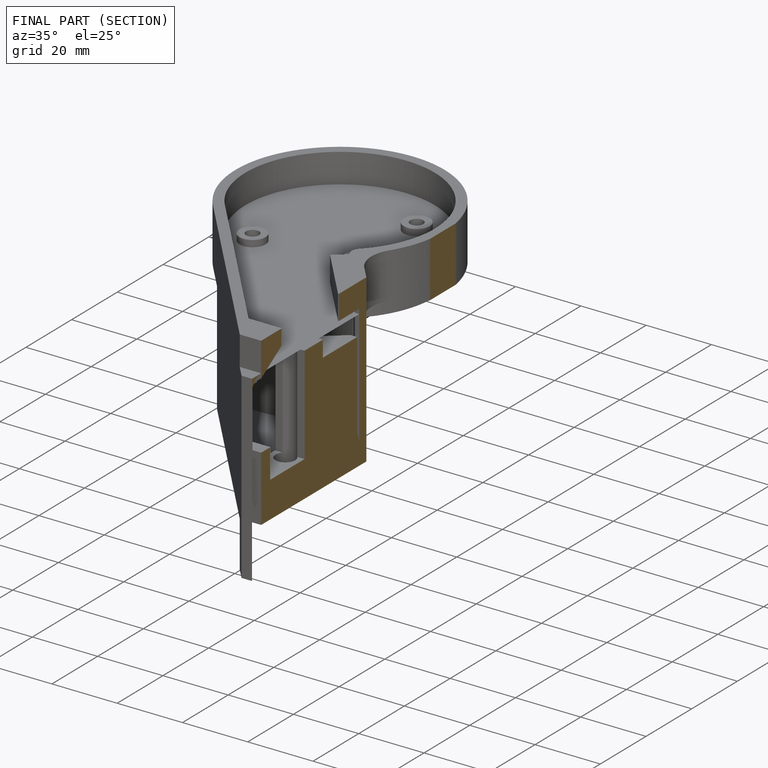
[diagram: finished part — half-section view (interior)]
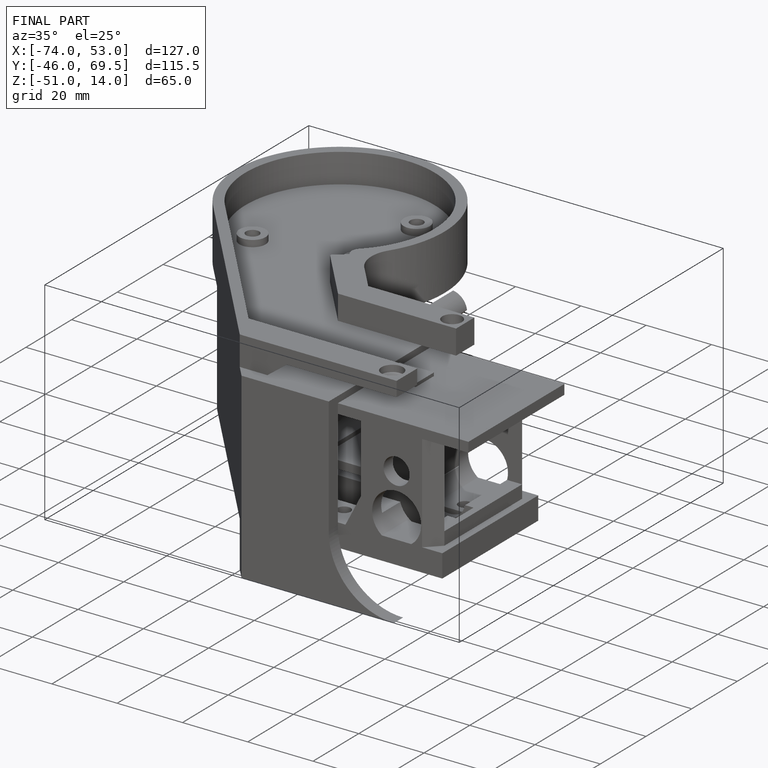
[diagram: finished part — iso view with bounding-box wireframe]
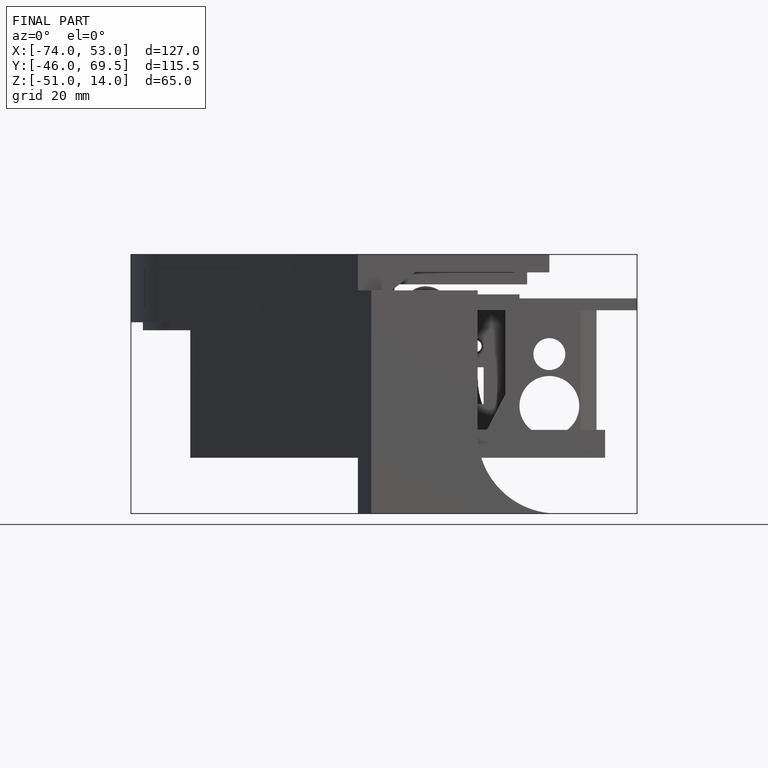
[diagram: finished part — front view with bounding-box wireframe]
